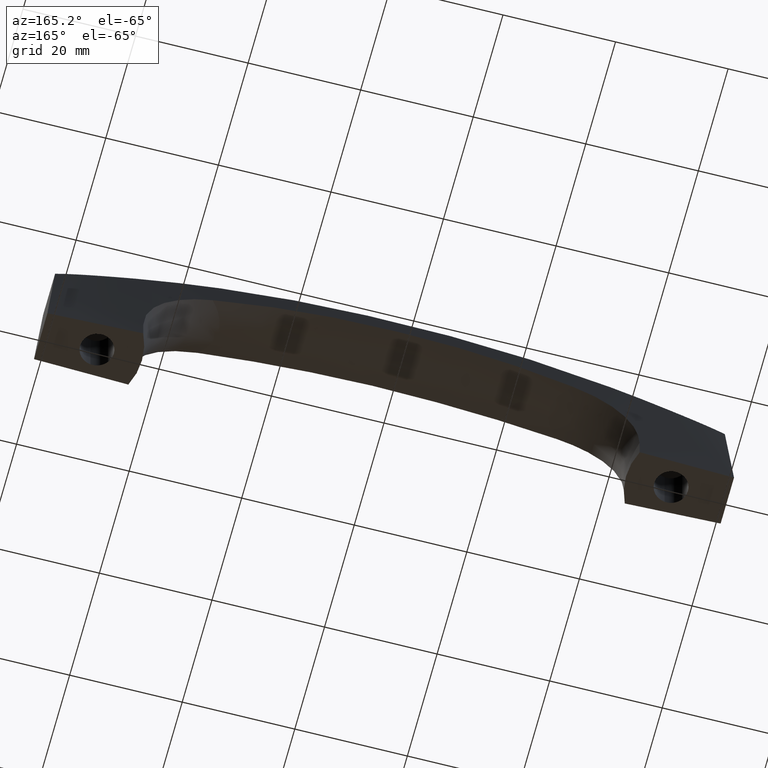
[diagram: clean part render]
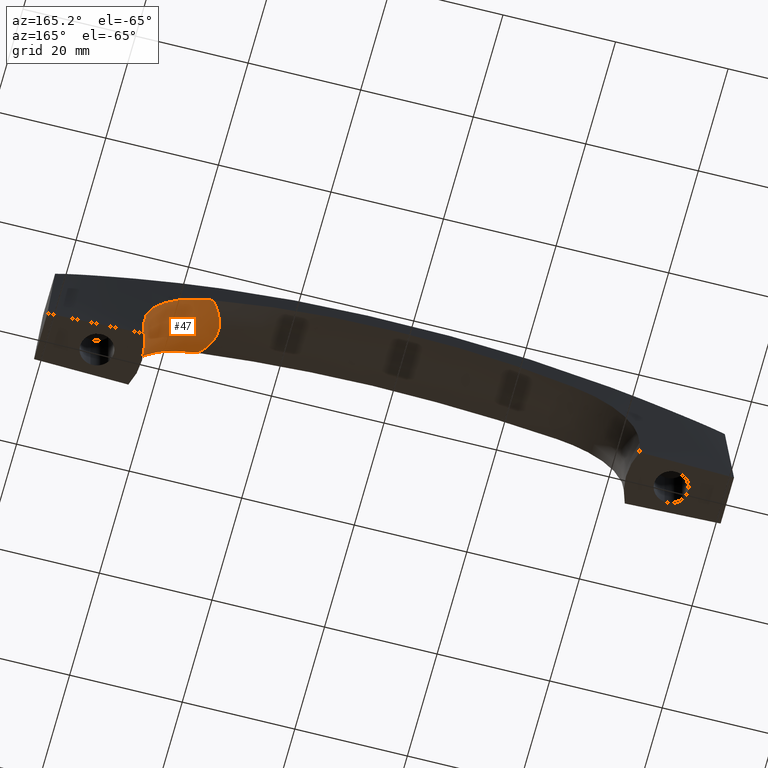
[diagram: same view with one face highlighted and labeled with its STEP entity id]
A machine part, auxiliary view. The second image highlights one B-rep face of the part: STEP entity #47.
In plain terms, the highlighted face is a freeform B-spline surface patch.
Its self-contained STEP definition (entity closure, byte-faithful):
#47=ADVANCED_FACE('',(#131),#130,.F.);
#130=( BOUNDED_SURFACE() B_SPLINE_SURFACE( 3,3,((#277,#278,#279,#280,#281,#282,#283,#284,#285,#286,#287,#288,#289,#290,#291,#292,#293,#294,#295,#296,#297,#298,#299,#300,#301,#302,#303,#304),(#305,#306,#307,#308,#309,#310,#311,#312,#313,#314,#315,#316,#317,#318,#319,#320,#321,#322,#323,#324,#325,#326,#327,#328,#329,#330,#331,#332),(#333,#334,#335,#336,#337,#338,#339,#340,#341,#342,#343,#344,#345,#346,#347,#348,#349,#350,#351,#352,#353,#354,#355,#356,#357,#358,#359,#360),(#361,#362,#363,#364,#365,#366,#367,#368,#369,#370,#371,#372,#373,#374,#375,#376,#377,#378,#379,#380,#381,#382,#383,#384,#385,#386,#387,#388),(#389,#390,#391,#392,#393,#394,#395,#396,#397,#398,#399,#400,#401,#402,#403,#404,#405,#406,#407,#408,#409,#410,#411,#412,#413,#414,#415,#416),(#417,#418,#419,#420,#421,#422,#423,#424,#425,#426,#427,#428,#429,#430,#431,#432,#433,#434,#435,#436,#437,#438,#439,#440,#441,#442,#443,#444),(#445,#446,#447,#448,#449,#450,#451,#452,#453,#454,#455,#456,#457,#458,#459,#460,#461,#462,#463,#464,#465,#466,#467,#468,#469,#470,#471,#472),(#473,#474,#475,#476,#477,#478,#479,#480,#481,#482,#483,#484,#485,#486,#487,#488,#489,#490,#491,#492,#493,#494,#495,#496,#497,#498,#499,#500),(#501,#502,#503,#504,#505,#506,#507,#508,#509,#510,#511,#512,#513,#514,#515,#516,#517,#518,#519,#520,#521,#522,#523,#524,#525,#526,#527,#528),(#529,#530,#531,#532,#533,#534,#535,#536,#537,#538,#539,#540,#541,#542,#543,#544,#545,#546,#547,#548,#549,#550,#551,#552,#553,#554,#555,#556),(#557,#558,#559,#560,#561,#562,#563,#564,#565,#566,#567,#568,#569,#570,#571,#572,#573,#574,#575,#576,#577,#578,#579,#580,#581,#582,#583,#584),(#585,#586,#587,#588,#589,#590,#591,#592,#593,#594,#595,#596,#597,#598,#599,#600,#601,#602,#603,#604,#605,#606,#607,#608,#609,#610,#611,#612),(#613,#614,#615,#616,#617,#618,#619,#620,#621,#622,#623,#624,#625,#626,#627,#628,#629,#630,#631,#632,#633,#634,#635,#636,#637,#638,#639,#640),(#641,#642,#643,#644,#645,#646,#647,#648,#649,#650,#651,#652,#653,#654,#655,#656,#657,#658,#659,#660,#661,#662,#663,#664,#665,#666,#667,#668),(#669,#670,#671,#672,#673,#674,#675,#676,#677,#678,#679,#680,#681,#682,#683,#684,#685,#686,#687,#688,#689,#690,#691,#692,#693,#694,#695,#696),(#697,#698,#699,#700,#701,#702,#703,#704,#705,#706,#707,#708,#709,#710,#711,#712,#713,#714,#715,#716,#717,#718,#719,#720,#721,#722,#723,#724),(#725,#726,#727,#728,#729,#730,#731,#732,#733,#734,#735,#736,#737,#738,#739,#740,#741,#742,#743,#744,#745,#746,#747,#748,#749,#750,#751,#752),(#753,#754,#755,#756,#757,#758,#759,#760,#761,#762,#763,#764,#765,#766,#767,#768,#769,#770,#771,#772,#773,#774,#775,#776,#777,#778,#779,#780),(#781,#782,#783,#784,#785,#786,#787,#788,#789,#790,#791,#792,#793,#794,#795,#796,#797,#798,#799,#800,#801,#802,#803,#804,#805,#806,#807,#808),(#809,#810,#811,#812,#813,#814,#815,#816,#817,#818,#819,#820,#821,#822,#823,#824,#825,#826,#827,#828,#829,#830,#831,#832,#833,#834,#835,#836),(#837,#838,#839,#840,#841,#842,#843,#844,#845,#846,#847,#848,#849,#850,#851,#852,#853,#854,#855,#856,#857,#858,#859,#860,#861,#862,#863,#864),(#865,#866,#867,#868,#869,#870,#871,#872,#873,#874,#875,#876,#877,#878,#879,#880,#881,#882,#883,#884,#885,#886,#887,#888,#889,#890,#891,#892)), .UNSPECIFIED.,.F.,.F.,.F.) B_SPLINE_SURFACE_WITH_KNOTS((4,3,3,3,3,3,3,4),(4,3,3,3,3,3,3,3,3,4),(1.23520231789E-01,3.32545823785E+00,6.11230798668E+00,1.09049134746E+01,1.44699194718E+01,1.71217688244E+01,2.10193477955E+01,2.48228626393E+01),(-5.60333634735E-04,1.79694562342E-01,9.76460286446E-01,3.02785890337E+00,5.07925752029E+00,9.18205475413E+00,1.12334533710E+01,1.32848519880E+01,1.73876492218E+01,1.82051841601E+01), .UNSPECIFIED. ) GEOMETRIC_REPRESENTATION_ITEM() RATIONAL_B_SPLINE_SURFACE(((1.00000000000E+00,1.00000000000E+00,1.00000000000E+00,1.00000000000E+00,1.00000000000E+00,1.00000000000E+00,1.00000000000E+00,1.00000000000E+00,1.00000000000E+00,1.00000000000E+00,1.00000000000E+00,1.00000000000E+00,1.00000000000E+00,1.00000000000E+00,1.00000000000E+00,1.00000000000E+00,1.00000000000E+00,1.00000000000E+00,1.00000000000E+00,1.00000000000E+00,1.00000000000E+00,1.00000000000E+00,1.00000000000E+00,1.00000000000E+00,1.00000000000E+00,1.00000000000E+00,1.00000000000E+00,1.00000000000E+00),(1.00000000000E+00,1.00000000000E+00,1.00000000000E+00,1.00000000000E+00,1.00000000000E+00,1.00000000000E+00,1.00000000000E+00,1.00000000000E+00,1.00000000000E+00,1.00000000000E+00,1.00000000000E+00,1.00000000000E+00,1.00000000000E+00,1.00000000000E+00,1.00000000000E+00,1.00000000000E+00,1.00000000000E+00,1.00000000000E+00,1.00000000000E+00,1.00000000000E+00,1.00000000000E+00,1.00000000000E+00,1.00000000000E+00,1.00000000000E+00,1.00000000000E+00,1.00000000000E+00,1.00000000000E+00,1.00000000000E+00),(1.00000000000E+00,1.00000000000E+00,1.00000000000E+00,1.00000000000E+00,1.00000000000E+00,1.00000000000E+00,1.00000000000E+00,1.00000000000E+00,1.00000000000E+00,1.00000000000E+00,1.00000000000E+00,1.00000000000E+00,1.00000000000E+00,1.00000000000E+00,1.00000000000E+00,1.00000000000E+00,1.00000000000E+00,1.00000000000E+00,1.00000000000E+00,1.00000000000E+00,1.00000000000E+00,1.00000000000E+00,1.00000000000E+00,1.00000000000E+00,1.00000000000E+00,1.00000000000E+00,1.00000000000E+00,1.00000000000E+00),(1.00000000000E+00,1.00000000000E+00,1.00000000000E+00,1.00000000000E+00,1.00000000000E+00,1.00000000000E+00,1.00000000000E+00,1.00000000000E+00,1.00000000000E+00,1.00000000000E+00,1.00000000000E+00,1.00000000000E+00,1.00000000000E+00,1.00000000000E+00,1.00000000000E+00,1.00000000000E+00,1.00000000000E+00,1.00000000000E+00,1.00000000000E+00,1.00000000000E+00,1.00000000000E+00,1.00000000000E+00,1.00000000000E+00,1.00000000000E+00,1.00000000000E+00,1.00000000000E+00,1.00000000000E+00,1.00000000000E+00),(1.00000000000E+00,1.00000000000E+00,1.00000000000E+00,1.00000000000E+00,1.00000000000E+00,1.00000000000E+00,1.00000000000E+00,1.00000000000E+00,1.00000000000E+00,1.00000000000E+00,1.00000000000E+00,1.00000000000E+00,1.00000000000E+00,1.00000000000E+00,1.00000000000E+00,1.00000000000E+00,1.00000000000E+00,1.00000000000E+00,1.00000000000E+00,1.00000000000E+00,1.00000000000E+00,1.00000000000E+00,1.00000000000E+00,1.00000000000E+00,1.00000000000E+00,1.00000000000E+00,1.00000000000E+00,1.00000000000E+00),(1.00000000000E+00,1.00000000000E+00,1.00000000000E+00,1.00000000000E+00,1.00000000000E+00,1.00000000000E+00,1.00000000000E+00,1.00000000000E+00,1.00000000000E+00,1.00000000000E+00,1.00000000000E+00,1.00000000000E+00,1.00000000000E+00,1.00000000000E+00,1.00000000000E+00,1.00000000000E+00,1.00000000000E+00,1.00000000000E+00,1.00000000000E+00,1.00000000000E+00,1.00000000000E+00,1.00000000000E+00,1.00000000000E+00,1.00000000000E+00,1.00000000000E+00,1.00000000000E+00,1.00000000000E+00,1.00000000000E+00),(1.00000000000E+00,1.00000000000E+00,1.00000000000E+00,1.00000000000E+00,1.00000000000E+00,1.00000000000E+00,1.00000000000E+00,1.00000000000E+00,1.00000000000E+00,1.00000000000E+00,1.00000000000E+00,1.00000000000E+00,1.00000000000E+00,1.00000000000E+00,1.00000000000E+00,1.00000000000E+00,1.00000000000E+00,1.00000000000E+00,1.00000000000E+00,1.00000000000E+00,1.00000000000E+00,1.00000000000E+00,1.00000000000E+00,1.00000000000E+00,1.00000000000E+00,1.00000000000E+00,1.00000000000E+00,1.00000000000E+00),(1.00000000000E+00,1.00000000000E+00,1.00000000000E+00,1.00000000000E+00,1.00000000000E+00,1.00000000000E+00,1.00000000000E+00,1.00000000000E+00,1.00000000000E+00,1.00000000000E+00,1.00000000000E+00,1.00000000000E+00,1.00000000000E+00,1.00000000000E+00,1.00000000000E+00,1.00000000000E+00,1.00000000000E+00,1.00000000000E+00,1.00000000000E+00,1.00000000000E+00,1.00000000000E+00,1.00000000000E+00,1.00000000000E+00,1.00000000000E+00,1.00000000000E+00,1.00000000000E+00,1.00000000000E+00,1.00000000000E+00),(1.00000000000E+00,1.00000000000E+00,1.00000000000E+00,1.00000000000E+00,1.00000000000E+00,1.00000000000E+00,1.00000000000E+00,1.00000000000E+00,1.00000000000E+00,1.00000000000E+00,1.00000000000E+00,1.00000000000E+00,1.00000000000E+00,1.00000000000E+00,1.00000000000E+00,1.00000000000E+00,1.00000000000E+00,1.00000000000E+00,1.00000000000E+00,1.00000000000E+00,1.00000000000E+00,1.00000000000E+00,1.00000000000E+00,1.00000000000E+00,1.00000000000E+00,1.00000000000E+00,1.00000000000E+00,1.00000000000E+00),(1.00000000000E+00,1.00000000000E+00,1.00000000000E+00,1.00000000000E+00,1.00000000000E+00,1.00000000000E+00,1.00000000000E+00,1.00000000000E+00,1.00000000000E+00,1.00000000000E+00,1.00000000000E+00,1.00000000000E+00,1.00000000000E+00,1.00000000000E+00,1.00000000000E+00,1.00000000000E+00,1.00000000000E+00,1.00000000000E+00,1.00000000000E+00,1.00000000000E+00,1.00000000000E+00,1.00000000000E+00,1.00000000000E+00,1.00000000000E+00,1.00000000000E+00,1.00000000000E+00,1.00000000000E+00,1.00000000000E+00),(1.00000000000E+00,1.00000000000E+00,1.00000000000E+00,1.00000000000E+00,1.00000000000E+00,1.00000000000E+00,1.00000000000E+00,1.00000000000E+00,1.00000000000E+00,1.00000000000E+00,1.00000000000E+00,1.00000000000E+00,1.00000000000E+00,1.00000000000E+00,1.00000000000E+00,1.00000000000E+00,1.00000000000E+00,1.00000000000E+00,1.00000000000E+00,1.00000000000E+00,1.00000000000E+00,1.00000000000E+00,1.00000000000E+00,1.00000000000E+00,1.00000000000E+00,1.00000000000E+00,1.00000000000E+00,1.00000000000E+00),(1.00000000000E+00,1.00000000000E+00,1.00000000000E+00,1.00000000000E+00,1.00000000000E+00,1.00000000000E+00,1.00000000000E+00,1.00000000000E+00,1.00000000000E+00,1.00000000000E+00,1.00000000000E+00,1.00000000000E+00,1.00000000000E+00,1.00000000000E+00,1.00000000000E+00,1.00000000000E+00,1.00000000000E+00,1.00000000000E+00,1.00000000000E+00,1.00000000000E+00,1.00000000000E+00,1.00000000000E+00,1.00000000000E+00,1.00000000000E+00,1.00000000000E+00,1.00000000000E+00,1.00000000000E+00,1.00000000000E+00),(1.00000000000E+00,1.00000000000E+00,1.00000000000E+00,1.00000000000E+00,1.00000000000E+00,1.00000000000E+00,1.00000000000E+00,1.00000000000E+00,1.00000000000E+00,1.00000000000E+00,1.00000000000E+00,1.00000000000E+00,1.00000000000E+00,1.00000000000E+00,1.00000000000E+00,1.00000000000E+00,1.00000000000E+00,1.00000000000E+00,1.00000000000E+00,1.00000000000E+00,1.00000000000E+00,1.00000000000E+00,1.00000000000E+00,1.00000000000E+00,1.00000000000E+00,1.00000000000E+00,1.00000000000E+00,1.00000000000E+00),(1.00000000000E+00,1.00000000000E+00,1.00000000000E+00,1.00000000000E+00,1.00000000000E+00,1.00000000000E+00,1.00000000000E+00,1.00000000000E+00,1.00000000000E+00,1.00000000000E+00,1.00000000000E+00,1.00000000000E+00,1.00000000000E+00,1.00000000000E+00,1.00000000000E+00,1.00000000000E+00,1.00000000000E+00,1.00000000000E+00,1.00000000000E+00,1.00000000000E+00,1.00000000000E+00,1.00000000000E+00,1.00000000000E+00,1.00000000000E+00,1.00000000000E+00,1.00000000000E+00,1.00000000000E+00,1.00000000000E+00),(1.00000000000E+00,1.00000000000E+00,1.00000000000E+00,1.00000000000E+00,1.00000000000E+00,1.00000000000E+00,1.00000000000E+00,1.00000000000E+00,1.00000000000E+00,1.00000000000E+00,1.00000000000E+00,1.00000000000E+00,1.00000000000E+00,1.00000000000E+00,1.00000000000E+00,1.00000000000E+00,1.00000000000E+00,1.00000000000E+00,1.00000000000E+00,1.00000000000E+00,1.00000000000E+00,1.00000000000E+00,1.00000000000E+00,1.00000000000E+00,1.00000000000E+00,1.00000000000E+00,1.00000000000E+00,1.00000000000E+00),(1.00000000000E+00,1.00000000000E+00,1.00000000000E+00,1.00000000000E+00,1.00000000000E+00,1.00000000000E+00,1.00000000000E+00,1.00000000000E+00,1.00000000000E+00,1.00000000000E+00,1.00000000000E+00,1.00000000000E+00,1.00000000000E+00,1.00000000000E+00,1.00000000000E+00,1.00000000000E+00,1.00000000000E+00,1.00000000000E+00,1.00000000000E+00,1.00000000000E+00,1.00000000000E+00,1.00000000000E+00,1.00000000000E+00,1.00000000000E+00,1.00000000000E+00,1.00000000000E+00,1.00000000000E+00,1.00000000000E+00),(1.00000000000E+00,1.00000000000E+00,1.00000000000E+00,1.00000000000E+00,1.00000000000E+00,1.00000000000E+00,1.00000000000E+00,1.00000000000E+00,1.00000000000E+00,1.00000000000E+00,1.00000000000E+00,1.00000000000E+00,1.00000000000E+00,1.00000000000E+00,1.00000000000E+00,1.00000000000E+00,1.00000000000E+00,1.00000000000E+00,1.00000000000E+00,1.00000000000E+00,1.00000000000E+00,1.00000000000E+00,1.00000000000E+00,1.00000000000E+00,1.00000000000E+00,1.00000000000E+00,1.00000000000E+00,1.00000000000E+00),(1.00000000000E+00,1.00000000000E+00,1.00000000000E+00,1.00000000000E+00,1.00000000000E+00,1.00000000000E+00,1.00000000000E+00,1.00000000000E+00,1.00000000000E+00,1.00000000000E+00,1.00000000000E+00,1.00000000000E+00,1.00000000000E+00,1.00000000000E+00,1.00000000000E+00,1.00000000000E+00,1.00000000000E+00,1.00000000000E+00,1.00000000000E+00,1.00000000000E+00,1.00000000000E+00,1.00000000000E+00,1.00000000000E+00,1.00000000000E+00,1.00000000000E+00,1.00000000000E+00,1.00000000000E+00,1.00000000000E+00),(1.00000000000E+00,1.00000000000E+00,1.00000000000E+00,1.00000000000E+00,1.00000000000E+00,1.00000000000E+00,1.00000000000E+00,1.00000000000E+00,1.00000000000E+00,1.00000000000E+00,1.00000000000E+00,1.00000000000E+00,1.00000000000E+00,1.00000000000E+00,1.00000000000E+00,1.00000000000E+00,1.00000000000E+00,1.00000000000E+00,1.00000000000E+00,1.00000000000E+00,1.00000000000E+00,1.00000000000E+00,1.00000000000E+00,1.00000000000E+00,1.00000000000E+00,1.00000000000E+00,1.00000000000E+00,1.00000000000E+00),(1.00000000000E+00,1.00000000000E+00,1.00000000000E+00,1.00000000000E+00,1.00000000000E+00,1.00000000000E+00,1.00000000000E+00,1.00000000000E+00,1.00000000000E+00,1.00000000000E+00,1.00000000000E+00,1.00000000000E+00,1.00000000000E+00,1.00000000000E+00,1.00000000000E+00,1.00000000000E+00,1.00000000000E+00,1.00000000000E+00,1.00000000000E+00,1.00000000000E+00,1.00000000000E+00,1.00000000000E+00,1.00000000000E+00,1.00000000000E+00,1.00000000000E+00,1.00000000000E+00,1.00000000000E+00,1.00000000000E+00),(1.00000000000E+00,1.00000000000E+00,1.00000000000E+00,1.00000000000E+00,1.00000000000E+00,1.00000000000E+00,1.00000000000E+00,1.00000000000E+00,1.00000000000E+00,1.00000000000E+00,1.00000000000E+00,1.00000000000E+00,1.00000000000E+00,1.00000000000E+00,1.00000000000E+00,1.00000000000E+00,1.00000000000E+00,1.00000000000E+00,1.00000000000E+00,1.00000000000E+00,1.00000000000E+00,1.00000000000E+00,1.00000000000E+00,1.00000000000E+00,1.00000000000E+00,1.00000000000E+00,1.00000000000E+00,1.00000000000E+00),(1.00000000000E+00,1.00000000000E+00,1.00000000000E+00,1.00000000000E+00,1.00000000000E+00,1.00000000000E+00,1.00000000000E+00,1.00000000000E+00,1.00000000000E+00,1.00000000000E+00,1.00000000000E+00,1.00000000000E+00,1.00000000000E+00,1.00000000000E+00,1.00000000000E+00,1.00000000000E+00,1.00000000000E+00,1.00000000000E+00,1.00000000000E+00,1.00000000000E+00,1.00000000000E+00,1.00000000000E+00,1.00000000000E+00,1.00000000000E+00,1.00000000000E+00,1.00000000000E+00,1.00000000000E+00,1.00000000000E+00))) REPRESENTATION_ITEM('') SURFACE() );
#131=FACE_OUTER_BOUND('',#893,.T.);
#277=CARTESIAN_POINT('',(4.50596567039E+01,6.72309583628E+00,5.22125410250E+00));
#278=CARTESIAN_POINT('',(4.50372018248E+01,6.68914607805E+00,5.18357260397E+00));
#279=CARTESIAN_POINT('',(4.50147469457E+01,6.65519631981E+00,5.14589110543E+00));
#280=CARTESIAN_POINT('',(4.49922920666E+01,6.62124656158E+00,5.10820960690E+00));
#281=CARTESIAN_POINT('',(4.48930366321E+01,6.47118126901E+00,4.94164921307E+00));
#282=CARTESIAN_POINT('',(4.47958875971E+01,6.31696553083E+00,4.77945647009E+00));
#283=CARTESIAN_POINT('',(4.47011382989E+01,6.15851192217E+00,4.62217460447E+00));
#284=CARTESIAN_POINT('',(4.44571913351E+01,5.75054819604E+00,4.21722771501E+00));
#285=CARTESIAN_POINT('',(4.42285183307E+01,5.31334448361E+00,3.84262658181E+00));
#286=CARTESIAN_POINT('',(4.40215294716E+01,4.84423348671E+00,3.50669973564E+00));
#287=CARTESIAN_POINT('',(4.38145406126E+01,4.37512248982E+00,3.17077288947E+00));
#288=CARTESIAN_POINT('',(4.36281845161E+01,3.86940236148E+00,2.87144500846E+00));
#289=CARTESIAN_POINT('',(4.34761636081E+01,3.34578554641E+00,2.63043680323E+00));
#290=CARTESIAN_POINT('',(4.31721217922E+01,2.29855191626E+00,2.14842039277E+00));
#291=CARTESIAN_POINT('',(4.30032608218E+01,1.17557991966E+00,1.89477349152E+00));
#292=CARTESIAN_POINT('',(4.30003390706E+01,3.06219988709E-02,1.88940522898E+00));
#293=CARTESIAN_POINT('',(4.29988781950E+01,-5.41856961521E-01,1.88672109771E+00));
#294=CARTESIAN_POINT('',(4.30395320807E+01,-1.12289770647E+00,1.94745689116E+00));
#295=CARTESIAN_POINT('',(4.31190122734E+01,-1.68374643163E+00,2.06986140791E+00));
#296=CARTESIAN_POINT('',(4.31984924660E+01,-2.24459515680E+00,2.19226592466E+00));
#297=CARTESIAN_POINT('',(4.33161696256E+01,-2.78856712324E+00,2.37517850658E+00));
#298=CARTESIAN_POINT('',(4.34660164873E+01,-3.31063503535E+00,2.61210057108E+00));
#299=CARTESIAN_POINT('',(4.37657102106E+01,-4.35477085955E+00,3.08594470007E+00));
#300=CARTESIAN_POINT('',(4.41994588857E+01,-5.31646203998E+00,3.78728223438E+00));
#301=CARTESIAN_POINT('',(4.46911581599E+01,-6.14179096215E+00,4.60456816621E+00));
#302=CARTESIAN_POINT('',(4.47891355429E+01,-6.30624832890E+00,4.76742286404E+00));
#303=CARTESIAN_POINT('',(4.48896182656E+01,-6.46602493545E+00,4.93540096366E+00));
#304=CARTESIAN_POINT('',(4.49922695046E+01,-6.62123306887E+00,5.10787838956E+00));
#305=CARTESIAN_POINT('',(4.48819749740E+01,6.46087590495E+00,5.97386984346E+00));
#306=CARTESIAN_POINT('',(4.48607601043E+01,6.42686623206E+00,5.93821260082E+00));
#307=CARTESIAN_POINT('',(4.48395452347E+01,6.39285655916E+00,5.90255535817E+00));
#308=CARTESIAN_POINT('',(4.48183303650E+01,6.35884688627E+00,5.86689811553E+00));
#309=CARTESIAN_POINT('',(4.47245560411E+01,6.20851675791E+00,5.70928537163E+00));
#310=CARTESIAN_POINT('',(4.46331840000E+01,6.05457812558E+00,5.55595157362E+00));
#311=CARTESIAN_POINT('',(4.45444944499E+01,5.89701636534E+00,5.40742512083E+00));
#312=CARTESIAN_POINT('',(4.43161492604E+01,5.49134884317E+00,5.02502041815E+00));
#313=CARTESIAN_POINT('',(4.41047219412E+01,5.06088030555E+00,4.67218729601E+00));
#314=CARTESIAN_POINT('',(4.39153896713E+01,4.60396194997E+00,4.35661192154E+00));
#315=CARTESIAN_POINT('',(4.37260574014E+01,4.14704359438E+00,4.04103654707E+00));
#316=CARTESIAN_POINT('',(4.35578163140E+01,3.65908658113E+00,3.76074684138E+00));
#317=CARTESIAN_POINT('',(4.34216976003E+01,3.15870307775E+00,3.53550893723E+00));
#318=CARTESIAN_POINT('',(4.31494601730E+01,2.15793607098E+00,3.08503312893E+00));
#319=CARTESIAN_POINT('',(4.30028860480E+01,1.10267985917E+00,2.85011053014E+00));
#320=CARTESIAN_POINT('',(4.30003266892E+01,2.87235963772E-02,2.84512659696E+00));
#321=CARTESIAN_POINT('',(4.29990470098E+01,-5.08254535018E-01,2.84263463036E+00));
#322=CARTESIAN_POINT('',(4.30345422343E+01,-1.05329251945E+00,2.89899435070E+00));
#323=CARTESIAN_POINT('',(4.31045573212E+01,-1.58195025990E+00,3.01288131901E+00));
#324=CARTESIAN_POINT('',(4.31745724080E+01,-2.11060800035E+00,3.12676828733E+00));
#325=CARTESIAN_POINT('',(4.32785729164E+01,-2.62613683794E+00,3.29708778663E+00));
#326=CARTESIAN_POINT('',(4.34126064673E+01,-3.12506595138E+00,3.51839320997E+00));
#327=CARTESIAN_POINT('',(4.36806735692E+01,-4.12292417827E+00,3.96100405667E+00));
#328=CARTESIAN_POINT('',(4.40751641024E+01,-5.06106933392E+00,4.61908228352E+00));
#329=CARTESIAN_POINT('',(4.45352148473E+01,-5.88097768604E+00,5.39080626419E+00));
#330=CARTESIAN_POINT('',(4.46268858551E+01,-6.04435493473E+00,5.54458215925E+00));
#331=CARTESIAN_POINT('',(4.47213725719E+01,-6.20373535222E+00,5.70337891358E+00));
#332=CARTESIAN_POINT('',(4.48183504306E+01,-6.35914449026E+00,5.86658925918E+00));
#333=CARTESIAN_POINT('',(4.46572873380E+01,6.22366604471E+00,6.73959679834E+00));
#334=CARTESIAN_POINT('',(4.46370187432E+01,6.18955289156E+00,6.70607312421E+00));
#335=CARTESIAN_POINT('',(4.46167501483E+01,6.15543973841E+00,6.67254945008E+00));
#336=CARTESIAN_POINT('',(4.45964815535E+01,6.12132658527E+00,6.63902577595E+00));
#337=CARTESIAN_POINT('',(4.45068899697E+01,5.97053905175E+00,6.49084386752E+00));
#338=CARTESIAN_POINT('',(4.44199986461E+01,5.81663196540E+00,6.34686236502E+00));
#339=CARTESIAN_POINT('',(4.43360811367E+01,5.65966191985E+00,6.20759074201E+00));
#340=CARTESIAN_POINT('',(4.41200223161E+01,5.25551786018E+00,5.84901405358E+00));
#341=CARTESIAN_POINT('',(4.39225968165E+01,4.83061573358E+00,5.51930035314E+00));
#342=CARTESIAN_POINT('',(4.37479150214E+01,4.38435146299E+00,5.22541207989E+00));
#343=CARTESIAN_POINT('',(4.35732332263E+01,3.93808719241E+00,4.93152380664E+00));
#344=CARTESIAN_POINT('',(4.34203284545E+01,3.46597932391E+00,4.67160625554E+00));
#345=CARTESIAN_POINT('',(4.32978400405E+01,2.98665498731E+00,4.46329634197E+00));
#346=CARTESIAN_POINT('',(4.30528632125E+01,2.02800631412E+00,4.04667651485E+00));
#347=CARTESIAN_POINT('',(4.29260384857E+01,1.03524868965E+00,3.83200011276E+00));
#348=CARTESIAN_POINT('',(4.29237921114E+01,2.69676084527E-02,3.82742817185E+00));
#349=CARTESIAN_POINT('',(4.29226689242E+01,-4.77172932144E-01,3.82514220139E+00));
#350=CARTESIAN_POINT('',(4.29536058166E+01,-9.88911774767E-01,3.87676992986E+00));
#351=CARTESIAN_POINT('',(4.30153439974E+01,-1.48793020544E+00,3.98147087461E+00));
#352=CARTESIAN_POINT('',(4.30770821783E+01,-1.98694863611E+00,4.08617181936E+00));
#353=CARTESIAN_POINT('',(4.31691758431E+01,-2.47644108127E+00,4.24293055275E+00));
#354=CARTESIAN_POINT('',(4.32896393605E+01,-2.95438898522E+00,4.44748295750E+00));
#355=CARTESIAN_POINT('',(4.35305663954E+01,-3.91028479311E+00,4.85658776698E+00));
#356=CARTESIAN_POINT('',(4.38922480968E+01,-4.82810235833E+00,5.46845416107E+00));
#357=CARTESIAN_POINT('',(4.43273541537E+01,-5.64421949354E+00,6.19201427046E+00));
#358=CARTESIAN_POINT('',(4.44140546127E+01,-5.80684129367E+00,6.33619289681E+00));
#359=CARTESIAN_POINT('',(4.45038890756E+01,-5.96608968460E+00,6.48529676505E+00));
#360=CARTESIAN_POINT('',(4.45965381166E+01,-6.12190564122E+00,6.63873989180E+00));
#361=CARTESIAN_POINT('',(4.43843045507E+01,6.01722161071E+00,7.50880856455E+00));
#362=CARTESIAN_POINT('',(4.43646381742E+01,5.98299175460E+00,7.47745179643E+00));
#363=CARTESIAN_POINT('',(4.43449717977E+01,5.94876189849E+00,7.44609502832E+00));
#364=CARTESIAN_POINT('',(4.43253054213E+01,5.91453204237E+00,7.41473826020E+00));
#365=CARTESIAN_POINT('',(4.42383757731E+01,5.76322865644E+00,7.27613454618E+00));
#366=CARTESIAN_POINT('',(4.41544280577E+01,5.60922971710E+00,7.14165638495E+00));
#367=CARTESIAN_POINT('',(4.40737354871E+01,5.45265670798E+00,7.01179146135E+00));
#368=CARTESIAN_POINT('',(4.38659797784E+01,5.04953488101E+00,6.67743379937E+00));
#369=CARTESIAN_POINT('',(4.36785226756E+01,4.62918249804E+00,6.37126383966E+00));
#370=CARTESIAN_POINT('',(4.35146234951E+01,4.19197548063E+00,6.09948851697E+00));
#371=CARTESIAN_POINT('',(4.33507243146E+01,3.75476846323E+00,5.82771319428E+00));
#372=CARTESIAN_POINT('',(4.32094371697E+01,3.29632183951E+00,5.58860385947E+00));
#373=CARTESIAN_POINT('',(4.30974489278E+01,2.83534159195E+00,5.39761019417E+00));
#374=CARTESIAN_POINT('',(4.28734724442E+01,1.91338109683E+00,5.01562286357E+00));
#375=CARTESIAN_POINT('',(4.27625400105E+01,9.75716085590E-01,4.82170727919E+00));
#376=CARTESIAN_POINT('',(4.27605351394E+01,2.54173075581E-02,4.81755678512E+00));
#377=CARTESIAN_POINT('',(4.27595327039E+01,-4.49732081458E-01,4.81548153809E+00));
#378=CARTESIAN_POINT('',(4.27868137763E+01,-9.32074097588E-01,4.86225540831E+00));
#379=CARTESIAN_POINT('',(4.28420048917E+01,-1.40500528744E+00,4.95754197680E+00));
#380=CARTESIAN_POINT('',(4.28971960071E+01,-1.87793647728E+00,5.05282854528E+00));
#381=CARTESIAN_POINT('',(4.29799245125E+01,-2.34460224579E+00,5.19570046591E+00));
#382=CARTESIAN_POINT('',(4.30899139725E+01,-2.80426956228E+00,5.38312603595E+00));
#383=CARTESIAN_POINT('',(4.33098928927E+01,-3.72360419528E+00,5.75797717602E+00));
#384=CARTESIAN_POINT('',(4.36471611637E+01,-4.62429379625E+00,6.32267029646E+00));
#385=CARTESIAN_POINT('',(4.40653837289E+01,-5.43772170139E+00,6.99727453355E+00));
#386=CARTESIAN_POINT('',(4.41487199357E+01,-5.59980763795E+00,7.13169807482E+00));
#387=CARTESIAN_POINT('',(4.42354961260E+01,-5.75906440844E+00,7.27095225346E+00));
#388=CARTESIAN_POINT('',(4.43253912048E+01,-5.91535606146E+00,7.41447551883E+00));
#389=CARTESIAN_POINT('',(4.41467103153E+01,5.83753992483E+00,8.17830235656E+00));
#390=CARTESIAN_POINT('',(4.41275680877E+01,5.80320849472E+00,8.14883158419E+00));
#391=CARTESIAN_POINT('',(4.41084258600E+01,5.76887706461E+00,8.11936081183E+00));
#392=CARTESIAN_POINT('',(4.40892836324E+01,5.73454563451E+00,8.08989003946E+00));
#393=CARTESIAN_POINT('',(4.40046708357E+01,5.58279326950E+00,7.95962283559E+00));
#394=CARTESIAN_POINT('',(4.39232851293E+01,5.42871438467E+00,7.83341603508E+00));
#395=CARTESIAN_POINT('',(4.38453994274E+01,5.27248694154E+00,7.71173835865E+00));
#396=CARTESIAN_POINT('',(4.36448704437E+01,4.87025482852E+00,7.39846005163E+00));
#397=CARTESIAN_POINT('',(4.34660894689E+01,4.45386237603E+00,7.11278170289E+00));
#398=CARTESIAN_POINT('',(4.33115750819E+01,4.02453846059E+00,6.86025268371E+00));
#399=CARTESIAN_POINT('',(4.31570606949E+01,3.59521454514E+00,6.60772366453E+00));
#400=CARTESIAN_POINT('',(4.30258851074E+01,3.14865816929E+00,6.38672504025E+00));
#401=CARTESIAN_POINT('',(4.29230358315E+01,2.70364394600E+00,6.21080280421E+00));
#402=CARTESIAN_POINT('',(4.27173372797E+01,1.81361549942E+00,5.85895833211E+00));
#403=CARTESIAN_POINT('',(4.26202369166E+01,9.23901084067E-01,5.68311220426E+00));
#404=CARTESIAN_POINT('',(4.26184422412E+01,2.40679823525E-02,5.67932852211E+00));
#405=CARTESIAN_POINT('',(4.26175449035E+01,-4.25848568505E-01,5.67743668104E+00));
#406=CARTESIAN_POINT('',(4.26416440839E+01,-8.82604661868E-01,5.71998593055E+00));
#407=CARTESIAN_POINT('',(4.26911368729E+01,-1.33283047129E+00,5.80707857021E+00));
#408=CARTESIAN_POINT('',(4.27406296619E+01,-1.78305628070E+00,5.89417120987E+00));
#409=CARTESIAN_POINT('',(4.28152070751E+01,-2.22985454460E+00,6.02495655648E+00));
#410=CARTESIAN_POINT('',(4.29160802986E+01,-2.67361110628E+00,6.19747555590E+00));
#411=CARTESIAN_POINT('',(4.31178267457E+01,-3.56112422964E+00,6.54251355475E+00));
#412=CARTESIAN_POINT('',(4.34338464596E+01,-4.44690627688E+00,7.06614878288E+00));
#413=CARTESIAN_POINT('',(4.38373742511E+01,-5.25799357451E+00,7.69814361898E+00));
#414=CARTESIAN_POINT('',(4.39177823359E+01,-5.41961311503E+00,7.82407669094E+00));
#415=CARTESIAN_POINT('',(4.40018967174E+01,-5.57887717877E+00,7.95475805994E+00));
#416=CARTESIAN_POINT('',(4.40893948483E+01,-5.73558286054E+00,8.08964744073E+00));
#417=CARTESIAN_POINT('',(4.38725562602E+01,5.68117318814E+00,8.85038440409E+00));
#418=CARTESIAN_POINT('',(4.38536776047E+01,5.64673041001E+00,8.82282419338E+00));
#419=CARTESIAN_POINT('',(4.38347989492E+01,5.61228763188E+00,8.79526398268E+00));
#420=CARTESIAN_POINT('',(4.38159202937E+01,5.57784485374E+00,8.76770377198E+00));
#421=CARTESIAN_POINT('',(4.37324725431E+01,5.42560030632E+00,8.64588166491E+00));
#422=CARTESIAN_POINT('',(4.36524845626E+01,5.27134910979E+00,8.52805744651E+00));
#423=CARTESIAN_POINT('',(4.35762337214E+01,5.11532087871E+00,8.41467871361E+00));
#424=CARTESIAN_POINT('',(4.33799139432E+01,4.71360166846E+00,8.12276734137E+00));
#425=CARTESIAN_POINT('',(4.32067525176E+01,4.30040194033E+00,7.85789239359E+00));
#426=CARTESIAN_POINT('',(4.30586905330E+01,3.87775358290E+00,7.62492218217E+00));
#427=CARTESIAN_POINT('',(4.29106285483E+01,3.45510522547E+00,7.39195197074E+00));
#428=CARTESIAN_POINT('',(4.27867438314E+01,3.01878290969E+00,7.18938376753E+00));
#429=CARTESIAN_POINT('',(4.26906582815E+01,2.58767727522E+00,7.02881758494E+00));
#430=CARTESIAN_POINT('',(4.24984871816E+01,1.72546600628E+00,6.70768521976E+00));
#431=CARTESIAN_POINT('',(4.24122880275E+01,8.78081810842E-01,6.55028456357E+00));
#432=CARTESIAN_POINT('',(4.24106492595E+01,2.28747922921E-02,6.54687461662E+00));
#433=CARTESIAN_POINT('',(4.24098298755E+01,-4.04728716983E-01,6.54516964315E+00));
#434=CARTESIAN_POINT('',(4.24314328627E+01,-8.38861065513E-01,6.58340513712E+00));
#435=CARTESIAN_POINT('',(4.24765410091E+01,-1.26907663675E+00,6.66213666230E+00));
#436=CARTESIAN_POINT('',(4.25216491555E+01,-1.69929220799E+00,6.74086818749E+00));
#437=CARTESIAN_POINT('',(4.25900052961E+01,-2.12865704723E+00,6.85932828852E+00));
#438=CARTESIAN_POINT('',(4.26841116585E+01,-2.55854938806E+00,7.01666694684E+00));
#439=CARTESIAN_POINT('',(4.28723243833E+01,-3.41833406973E+00,7.33134426349E+00));
#440=CARTESIAN_POINT('',(4.31734608984E+01,-4.29162625534E+00,7.81321585214E+00));
#441=CARTESIAN_POINT('',(4.35684007396E+01,-5.10120194634E+00,8.40201879947E+00));
#442=CARTESIAN_POINT('',(4.36470975653E+01,-5.26252027986E+00,8.51934533397E+00));
#443=CARTESIAN_POINT('',(4.37297575036E+01,-5.42189685166E+00,8.64133842948E+00));
#444=CARTESIAN_POINT('',(4.38160514286E+01,-5.57906763428E+00,8.76748144190E+00));
#445=CARTESIAN_POINT('',(4.35626113348E+01,5.55122921781E+00,9.51791180239E+00));
#446=CARTESIAN_POINT('',(4.35437208739E+01,5.51668401668E+00,9.49222526811E+00));
#447=CARTESIAN_POINT('',(4.35248304130E+01,5.48213881556E+00,9.46653873383E+00));
#448=CARTESIAN_POINT('',(4.35059399522E+01,5.44759361443E+00,9.44085219956E+00));
#449=CARTESIAN_POINT('',(4.34224400191E+01,5.29489633515E+00,9.32731214854E+00));
#450=CARTESIAN_POINT('',(4.33426105196E+01,5.14045746034E+00,9.21770283682E+00));
#451=CARTESIAN_POINT('',(4.32667373600E+01,4.98455060609E+00,9.11244952083E+00));
#452=CARTESIAN_POINT('',(4.30713899824E+01,4.58314389958E+00,8.84145831184E+00));
#453=CARTESIAN_POINT('',(4.29005054973E+01,4.17248554888E+00,8.59692244611E+00));
#454=CARTESIAN_POINT('',(4.27556259431E+01,3.75530194468E+00,8.38304730528E+00));
#455=CARTESIAN_POINT('',(4.26107463890E+01,3.33811834048E+00,8.16917216445E+00));
#456=CARTESIAN_POINT('',(4.24909397749E+01,2.91024820718E+00,7.98457223572E+00));
#457=CARTESIAN_POINT('',(4.23988698843E+01,2.49070524692E+00,7.83896638564E+00));
#458=CARTESIAN_POINT('',(4.22147301030E+01,1.65161932638E+00,7.54775468548E+00));
#459=CARTESIAN_POINT('',(4.21358712017E+01,8.39679314771E-01,7.40824836804E+00));
#460=CARTESIAN_POINT('',(4.21343238502E+01,2.18747438097E-02,7.40520256706E+00));
#461=CARTESIAN_POINT('',(4.21335501744E+01,-3.87027541671E-01,7.40367966657E+00));
#462=CARTESIAN_POINT('',(4.21534860486E+01,-8.02199011352E-01,7.43772709705E+00));
#463=CARTESIAN_POINT('',(4.21957730940E+01,-1.21567435853E+00,7.50832925555E+00));
#464=CARTESIAN_POINT('',(4.22380601394E+01,-1.62914970570E+00,7.57893141406E+00));
#465=CARTESIAN_POINT('',(4.23024759253E+01,-2.04396467022E+00,7.68540527432E+00));
#466=CARTESIAN_POINT('',(4.23925362799E+01,-2.46232952845E+00,7.82796375953E+00));
#467=CARTESIAN_POINT('',(4.25726569891E+01,-3.29905924491E+00,8.11308072994E+00));
#468=CARTESIAN_POINT('',(4.28660461312E+01,-4.16219035601E+00,8.55419152033E+00));
#469=CARTESIAN_POINT('',(4.32589522333E+01,-4.97073852621E+00,9.10070619180E+00));
#470=CARTESIAN_POINT('',(4.33372438104E+01,-5.13185211305E+00,9.20960624528E+00));
#471=CARTESIAN_POINT('',(4.34197347216E+01,-5.29136815434E+00,9.32308469821E+00));
#472=CARTESIAN_POINT('',(4.35060849459E+01,-5.44897060001E+00,9.44064992184E+00));
#473=CARTESIAN_POINT('',(4.30295923764E+01,5.32776177555E+00,1.06658730349E+01));
#474=CARTESIAN_POINT('',(4.30106816135E+01,5.29304043539E+00,1.06434087023E+01));
#475=CARTESIAN_POINT('',(4.29917708506E+01,5.25831909523E+00,1.06209443697E+01));
#476=CARTESIAN_POINT('',(4.29728600878E+01,5.22359775507E+00,1.05984800371E+01));
#477=CARTESIAN_POINT('',(4.28892704156E+01,5.07012190309E+00,1.04991828161E+01));
#478=CARTESIAN_POINT('',(4.28097134592E+01,4.91536027392E+00,1.04037008562E+01));
#479=CARTESIAN_POINT('',(4.27344898067E+01,4.75966215401E+00,1.03124209945E+01));
#480=CARTESIAN_POINT('',(4.25408146873E+01,4.35879286689E+00,1.00774066405E+01));
#481=CARTESIAN_POINT('',(4.23738459058E+01,3.95250497767E+00,9.86784833186E+00));
#482=CARTESIAN_POINT('',(4.22344392458E+01,3.54471922720E+00,9.68681139487E+00));
#483=CARTESIAN_POINT('',(4.20950325858E+01,3.13693347673E+00,9.50577445788E+00));
#484=CARTESIAN_POINT('',(4.19822391731E+01,2.72359874355E+00,9.35207495746E+00));
#485=CARTESIAN_POINT('',(4.18970750981E+01,2.32394036295E+00,9.23219671315E+00));
#486=CARTESIAN_POINT('',(4.17267469482E+01,1.52462360174E+00,8.99244022454E+00));
#487=CARTESIAN_POINT('',(4.16605112378E+01,7.73637715831E-01,8.88370718657E+00));
#488=CARTESIAN_POINT('',(4.16591210971E+01,2.01549389127E-02,8.88128761523E+00));
#489=CARTESIAN_POINT('',(4.16584260268E+01,-3.56586449546E-01,8.88007782956E+00));
#490=CARTESIAN_POINT('',(4.16754949306E+01,-7.39150487820E-01,8.90692295713E+00));
#491=CARTESIAN_POINT('',(4.17129304679E+01,-1.12383731141E+00,8.96354486880E+00));
#492=CARTESIAN_POINT('',(4.17503660052E+01,-1.50852413500E+00,9.02016678048E+00));
#493=CARTESIAN_POINT('',(4.18080054783E+01,-1.89831736685E+00,9.10602764454E+00));
#494=CARTESIAN_POINT('',(4.18911078263E+01,-2.29685816517E+00,9.22316834796E+00));
#495=CARTESIAN_POINT('',(4.20573125224E+01,-3.09393976179E+00,9.45744975479E+00));
#496=CARTESIAN_POINT('',(4.23373783403E+01,-3.93959665439E+00,9.82846332323E+00));
#497=CARTESIAN_POINT('',(4.27267869773E+01,-4.74637777497E+00,1.03022539366E+01));
#498=CARTESIAN_POINT('',(4.28043816397E+01,-4.90713925451E+00,1.03966627893E+01));
#499=CARTESIAN_POINT('',(4.28865818717E+01,-5.06689514449E+00,1.04954984282E+01));
#500=CARTESIAN_POINT('',(4.29730289150E+01,-5.22523993039E+00,1.05983122438E+01));
#501=CARTESIAN_POINT('',(4.23899615169E+01,5.18304046345E+00,1.18001899194E+01));
#502=CARTESIAN_POINT('',(4.23702051693E+01,5.14817336060E+00,1.17808362123E+01));
#503=CARTESIAN_POINT('',(4.23504488217E+01,5.11330625776E+00,1.17614825052E+01));
#504=CARTESIAN_POINT('',(4.23306924740E+01,5.07843915491E+00,1.17421287982E+01));
#505=CARTESIAN_POINT('',(4.22433651339E+01,4.92431900025E+00,1.16565812165E+01));
#506=CARTESIAN_POINT('',(4.21603647453E+01,4.76920579793E+00,1.15747190180E+01));
#507=CARTESIAN_POINT('',(4.20820186449E+01,4.61350128728E+00,1.14968869761E+01));
#508=CARTESIAN_POINT('',(4.18803042925E+01,4.21261554618E+00,1.12964961480E+01));
#509=CARTESIAN_POINT('',(4.17072070847E+01,3.80879947429E+00,1.11205056533E+01));
#510=CARTESIAN_POINT('',(4.15634324328E+01,3.40683443344E+00,1.09708960706E+01));
#511=CARTESIAN_POINT('',(4.14196577810E+01,3.00486939259E+00,1.08212864879E+01));
#512=CARTESIAN_POINT('',(4.13041928024E+01,2.60077935227E+00,1.06970781600E+01));
#513=CARTESIAN_POINT('',(4.12176403894E+01,2.21401230195E+00,1.06017185643E+01));
#514=CARTESIAN_POINT('',(4.10445355635E+01,1.44047820132E+00,1.04109993728E+01));
#515=CARTESIAN_POINT('',(4.09801362393E+01,7.29823116943E-01,1.03313495074E+01));
#516=CARTESIAN_POINT('',(4.09787082328E+01,1.90139513256E-02,1.03295267900E+01));
#517=CARTESIAN_POINT('',(4.09779942295E+01,-3.36390631483E-01,1.03286154314E+01));
#518=CARTESIAN_POINT('',(4.09947067692E+01,-6.97324027959E-01,1.03486437211E+01));
#519=CARTESIAN_POINT('',(4.10320200308E+01,-1.06300999127E+00,1.03919952621E+01));
#520=CARTESIAN_POINT('',(4.10693332925E+01,-1.42869595457E+00,1.04353468031E+01));
#521=CARTESIAN_POINT('',(4.11270917627E+01,-1.80208495175E+00,1.05016321771E+01));
#522=CARTESIAN_POINT('',(4.12114484705E+01,-2.18776822696E+00,1.05945771696E+01));
#523=CARTESIAN_POINT('',(4.13801618863E+01,-2.95913477740E+00,1.07804671546E+01));
#524=CARTESIAN_POINT('',(4.16683886302E+01,-3.79417525684E+00,1.10844370401E+01));
#525=CARTESIAN_POINT('',(4.20739652376E+01,-4.60054484146E+00,1.14882409195E+01));
#526=CARTESIAN_POINT('',(4.21547815753E+01,-4.76122431719E+00,1.15687040184E+01));
#527=CARTESIAN_POINT('',(4.22405455941E+01,-4.92128286213E+00,1.16534224813E+01));
#528=CARTESIAN_POINT('',(4.23308670592E+01,-5.08025308905E+00,1.17419948383E+01));
#529=CARTESIAN_POINT('',(4.16587241881E+01,5.12597233766E+00,1.28833963237E+01));
#530=CARTESIAN_POINT('',(4.16373674772E+01,5.09104862197E+00,1.28667115798E+01));
#531=CARTESIAN_POINT('',(4.16160107663E+01,5.05612490627E+00,1.28500268359E+01));
#532=CARTESIAN_POINT('',(4.15946540554E+01,5.02120119057E+00,1.28333420920E+01));
#533=CARTESIAN_POINT('',(4.15002527626E+01,4.86683079483E+00,1.27595919063E+01));
#534=CARTESIAN_POINT('',(4.14103889123E+01,4.71158280362E+00,1.26893407590E+01));
#535=CARTESIAN_POINT('',(4.13254236259E+01,4.55587954464E+00,1.26228931104E+01));
#536=CARTESIAN_POINT('',(4.11066671386E+01,4.15499702613E+00,1.24518131927E+01));
#537=CARTESIAN_POINT('',(4.09179757230E+01,3.75216486672E+00,1.23037713337E+01));
#538=CARTESIAN_POINT('',(4.07603957194E+01,3.35250163456E+00,1.21799445905E+01));
#539=CARTESIAN_POINT('',(4.06028157158E+01,2.95283840240E+00,1.20561178473E+01));
#540=CARTESIAN_POINT('',(4.04752236810E+01,2.55239758621E+00,1.19557010909E+01));
#541=CARTESIAN_POINT('',(4.03790751239E+01,2.17071318832E+00,1.18798988061E+01));
#542=CARTESIAN_POINT('',(4.01867780096E+01,1.40734439255E+00,1.17282942364E+01));
#543=CARTESIAN_POINT('',(4.01130901427E+01,7.12571372964E-01,1.16708680672E+01));
#544=CARTESIAN_POINT('',(4.01114268838E+01,1.85646941129E-02,1.16695210374E+01));
#545=CARTESIAN_POINT('',(4.01105952543E+01,-3.28438645313E-01,1.16688475226E+01));
#546=CARTESIAN_POINT('',(4.01295311010E+01,-6.80855064026E-01,1.16836420143E+01));
#547=CARTESIAN_POINT('',(4.01715166053E+01,-1.03905743032E+00,1.17166494285E+01));
#548=CARTESIAN_POINT('',(4.02135021096E+01,-1.39725979661E+00,1.17496568427E+01));
#549=CARTESIAN_POINT('',(4.02783291348E+01,-1.76418548530E+00,1.18006059842E+01));
#550=CARTESIAN_POINT('',(4.03720773246E+01,-2.14479957005E+00,1.18742912671E+01));
#551=CARTESIAN_POINT('',(4.05595737041E+01,-2.90602773956E+00,1.20216618328E+01));
#552=CARTESIAN_POINT('',(4.08766276286E+01,-3.73686498314E+00,1.22709780573E+01));
#553=CARTESIAN_POINT('',(4.13166146915E+01,-4.54305278050E+00,1.26155461857E+01));
#554=CARTESIAN_POINT('',(4.14042877535E+01,-4.70369603279E+00,1.26842058020E+01));
#555=CARTESIAN_POINT('',(4.14971642449E+01,-4.86386994957E+00,1.27568888843E+01));
#556=CARTESIAN_POINT('',(4.15948154115E+01,-5.02308285409E+00,1.28332394965E+01));
#557=CARTESIAN_POINT('',(4.11147892723E+01,5.08352189788E+00,1.36891453755E+01));
#558=CARTESIAN_POINT('',(4.10922421223E+01,5.04855607040E+00,1.36744459545E+01));
#559=CARTESIAN_POINT('',(4.10696949724E+01,5.01359024292E+00,1.36597465336E+01));
#560=CARTESIAN_POINT('',(4.10471478225E+01,4.97862441544E+00,1.36450471127E+01));
#561=CARTESIAN_POINT('',(4.09474845310E+01,4.82406787649E+00,1.35800724849E+01));
#562=CARTESIAN_POINT('',(4.08525152569E+01,4.66871962183E+00,1.35184582820E+01));
#563=CARTESIAN_POINT('',(4.07626262526E+01,4.51301729390E+00,1.34604789771E+01));
#564=CARTESIAN_POINT('',(4.05311928793E+01,4.11213717254E+00,1.33112021417E+01));
#565=CARTESIAN_POINT('',(4.03309016263E+01,3.71003690184E+00,1.31839500293E+01));
#566=CARTESIAN_POINT('',(4.01630524357E+01,3.31208588276E+00,1.30793019933E+01));
#567=CARTESIAN_POINT('',(3.99952032451E+01,2.91413486368E+00,1.29746539573E+01));
#568=CARTESIAN_POINT('',(3.98585904328E+01,2.51640854297E+00,1.28919346924E+01));
#569=CARTESIAN_POINT('',(3.97553037310E+01,2.13850490409E+00,1.28306802211E+01));
#570=CARTESIAN_POINT('',(3.95487303274E+01,1.38269762635E+00,1.27081712784E+01));
#571=CARTESIAN_POINT('',(3.94681331267E+01,6.99738568157E-01,1.26672763280E+01));
#572=CARTESIAN_POINT('',(3.94662948740E+01,1.82305116601E-02,1.26662831411E+01));
#573=CARTESIAN_POINT('',(3.94653757477E+01,-3.22523516588E-01,1.26657865476E+01));
#574=CARTESIAN_POINT('',(3.94859654136E+01,-6.68604534469E-01,1.26766878500E+01));
#575=CARTESIAN_POINT('',(3.95314263913E+01,-1.02124018589E+00,1.27020007284E+01));
#576=CARTESIAN_POINT('',(3.95768873689E+01,-1.37387583731E+00,1.27273136069E+01));
#577=CARTESIAN_POINT('',(3.96469723777E+01,-1.73599375837E+00,1.27668548074E+01));
#578=CARTESIAN_POINT('',(3.97477064731E+01,-2.11283709787E+00,1.28262136491E+01));
#579=CARTESIAN_POINT('',(3.99491746638E+01,-2.86652377687E+00,1.29449313325E+01));
#580=CARTESIAN_POINT('',(4.02876718453E+01,-3.69423442029E+00,1.31535931302E+01));
#581=CARTESIAN_POINT('',(4.07532553152E+01,-4.50028699421E+00,1.34540984190E+01));
#582=CARTESIAN_POINT('',(4.08460287894E+01,-4.66090330149E+00,1.35139779496E+01));
#583=CARTESIAN_POINT('',(4.09441959327E+01,-4.82116303825E+00,1.35777084477E+01));
#584=CARTESIAN_POINT('',(4.10472993381E+01,-4.98055645983E+00,1.36449678478E+01));
#585=CARTESIAN_POINT('',(4.05205134779E+01,5.08938473114E+00,1.44665219137E+01));
#586=CARTESIAN_POINT('',(4.04963629645E+01,5.05442509726E+00,1.44535620561E+01));
#587=CARTESIAN_POINT('',(4.04722124510E+01,5.01946546338E+00,1.44406021985E+01));
#588=CARTESIAN_POINT('',(4.04480619376E+01,4.98450582951E+00,1.44276423409E+01));
#589=CARTESIAN_POINT('',(4.03413114319E+01,4.82997666762E+00,1.43703569604E+01));
#590=CARTESIAN_POINT('',(4.02393663189E+01,4.67464396334E+00,1.43162617502E+01));
#591=CARTESIAN_POINT('',(4.01426418351E+01,4.51894320303E+00,1.42656021824E+01));
#592=CARTESIAN_POINT('',(3.98936094454E+01,4.11806711776E+00,1.41351711608E+01));
#593=CARTESIAN_POINT('',(3.96765475205E+01,3.71587009775E+00,1.40255790944E+01));
#594=CARTESIAN_POINT('',(3.94932776010E+01,3.31768584157E+00,1.39369642733E+01));
#595=CARTESIAN_POINT('',(3.93100076815E+01,2.91950158540E+00,1.38483494523E+01));
#596=CARTESIAN_POINT('',(3.91592166506E+01,2.52140246134E+00,1.37801496528E+01));
#597=CARTESIAN_POINT('',(3.90443171687E+01,2.14297654100E+00,1.37306753156E+01));
#598=CARTESIAN_POINT('',(3.88145182048E+01,1.38612470031E+00,1.36317266414E+01));
#599=CARTESIAN_POINT('',(3.87209546408E+01,7.01523641983E-01,1.36035323849E+01));
#600=CARTESIAN_POINT('',(3.87188338753E+01,1.82769972534E-02,1.36028253986E+01));
#601=CARTESIAN_POINT('',(3.87177734925E+01,-3.23346325111E-01,1.36024719055E+01));
#602=CARTESIAN_POINT('',(3.87414216774E+01,-6.70308581641E-01,1.36103640106E+01));
#603=CARTESIAN_POINT('',(3.87929698545E+01,-1.02371737679E+00,1.36296158808E+01));
#604=CARTESIAN_POINT('',(3.88445180315E+01,-1.37712617194E+00,1.36488677509E+01));
#605=CARTESIAN_POINT('',(3.89236474009E+01,-1.73991047991E+00,1.36793669942E+01));
#606=CARTESIAN_POINT('',(3.90358035260E+01,-2.11727478371E+00,1.37271527637E+01));
#607=CARTESIAN_POINT('',(3.92601157763E+01,-2.87200339130E+00,1.38227243026E+01));
#608=CARTESIAN_POINT('',(3.96313339404E+01,-3.70013727879E+00,1.39976374055E+01));
#609=CARTESIAN_POINT('',(4.01324873724E+01,-4.50619974621E+00,1.42600644812E+01));
#610=CARTESIAN_POINT('',(4.02323486174E+01,-4.66681802491E+00,1.43123564398E+01));
#611=CARTESIAN_POINT('',(4.03377471870E+01,-4.82706414888E+00,1.43682929909E+01));
#612=CARTESIAN_POINT('',(4.04481931611E+01,-4.98643091558E+00,1.44275850343E+01));
#613=CARTESIAN_POINT('',(3.98865009003E+01,5.14335470151E+00,1.52018542699E+01));
#614=CARTESIAN_POINT('',(3.98604255486E+01,5.10844815704E+00,1.51902780116E+01));
#615=CARTESIAN_POINT('',(3.98343501969E+01,5.07354161256E+00,1.51787017533E+01));
#616=CARTESIAN_POINT('',(3.98082748452E+01,5.03863506809E+00,1.51671254950E+01));
#617=CARTESIAN_POINT('',(3.96930161369E+01,4.88434057287E+00,1.51159559234E+01));
#618=CARTESIAN_POINT('',(3.95826391584E+01,4.72913331008E+00,1.50677647292E+01));
#619=CARTESIAN_POINT('',(3.94775899929E+01,4.57342934425E+00,1.50227719384E+01));
#620=CARTESIAN_POINT('',(3.92071244013E+01,4.17254500585E+00,1.49069309252E+01));
#621=CARTESIAN_POINT('',(3.89692668959E+01,3.76941232514E+00,1.48105175493E+01));
#622=CARTESIAN_POINT('',(3.87665640606E+01,3.36904736430E+00,1.47334614181E+01));
#623=CARTESIAN_POINT('',(3.85638612253E+01,2.96868240345E+00,1.46564052869E+01));
#624=CARTESIAN_POINT('',(3.83948759267E+01,2.56712966862E+00,1.45982308480E+01));
#625=CARTESIAN_POINT('',(3.82648783678E+01,2.18389717016E+00,1.45566369862E+01));
#626=CARTESIAN_POINT('',(3.80048832500E+01,1.41743217325E+00,1.44734492625E+01));
#627=CARTESIAN_POINT('',(3.78936181371E+01,7.17823631660E-01,1.44526467015E+01));
#628=CARTESIAN_POINT('',(3.78911312368E+01,1.87014695632E-02,1.44521314652E+01));
#629=CARTESIAN_POINT('',(3.78898877866E+01,-3.30859611485E-01,1.44518738470E+01));
#630=CARTESIAN_POINT('',(3.79176921614E+01,-6.85869012832E-01,1.44579851635E+01));
#631=CARTESIAN_POINT('',(3.79773650476E+01,-1.04634997554E+00,1.44734579003E+01));
#632=CARTESIAN_POINT('',(3.80370379339E+01,-1.40683093824E+00,1.44889306371E+01));
#633=CARTESIAN_POINT('',(3.81281651596E+01,-1.77572482623E+00,1.45136970987E+01));
#634=CARTESIAN_POINT('',(3.82552019380E+01,-2.15788289854E+00,1.45537809652E+01));
#635=CARTESIAN_POINT('',(3.85092754947E+01,-2.92219904316E+00,1.46339486980E+01));
#636=CARTESIAN_POINT('',(3.89219813016E+01,-3.75431819489E+00,1.47849383933E+01));
#637=CARTESIAN_POINT('',(3.94664765188E+01,-4.56056304862E+00,1.50178987645E+01));
#638=CARTESIAN_POINT('',(3.95749741702E+01,-4.72121767012E+00,1.50643191045E+01));
#639=CARTESIAN_POINT('',(3.96891153474E+01,-4.88135678370E+00,1.51141355058E+01));
#640=CARTESIAN_POINT('',(3.98083758981E+01,-5.04049610197E+00,1.51670881435E+01));
#641=CARTESIAN_POINT('',(3.94148871513E+01,5.18350056132E+00,1.57488352944E+01));
#642=CARTESIAN_POINT('',(3.93873799981E+01,5.14863350769E+00,1.57382882340E+01));
#643=CARTESIAN_POINT('',(3.93598728448E+01,5.11376645406E+00,1.57277411737E+01));
#644=CARTESIAN_POINT('',(3.93323656916E+01,5.07889940043E+00,1.57171941134E+01));
#645=CARTESIAN_POINT('',(3.92107781099E+01,4.92477946331E+00,1.56705738200E+01));
#646=CARTESIAN_POINT('',(3.90941290419E+01,4.76966551087E+00,1.56267743606E+01));
#647=CARTESIAN_POINT('',(3.89828875159E+01,4.61395916059E+00,1.55859968331E+01));
#648=CARTESIAN_POINT('',(3.86964787191E+01,4.21306868306E+00,1.54810086779E+01));
#649=CARTESIAN_POINT('',(3.84431523065E+01,3.80924000599E+00,1.53943983436E+01));
#650=CARTESIAN_POINT('',(3.82259941897E+01,3.40725291595E+00,1.53259402075E+01));
#651=CARTESIAN_POINT('',(3.80088360729E+01,3.00526582591E+00,1.52574820714E+01));
#652=CARTESIAN_POINT('',(3.78263168681E+01,2.60114410368E+00,1.52067650523E+01));
#653=CARTESIAN_POINT('',(3.76850885215E+01,2.21433620562E+00,1.51710331254E+01));
#654=CARTESIAN_POINT('',(3.74026318282E+01,1.44072040949E+00,1.50995692717E+01));
#655=CARTESIAN_POINT('',(3.72781993206E+01,7.29948468787E-01,1.50842650641E+01));
#656=CARTESIAN_POINT('',(3.72754400689E+01,1.90172156295E-02,1.50838924620E+01));
#657=CARTESIAN_POINT('',(3.72740604430E+01,-3.36448410949E-01,1.50837061610E+01));
#658=CARTESIAN_POINT('',(3.73049564225E+01,-6.97443725303E-01,1.50884928280E+01));
#659=CARTESIAN_POINT('',(3.73706729184E+01,-1.06318535881E+00,1.51011544357E+01));
#660=CARTESIAN_POINT('',(3.74363894144E+01,-1.42892699231E+00,1.51138160433E+01));
#661=CARTESIAN_POINT('',(3.75364413117E+01,-1.80236552506E+00,1.51343181437E+01));
#662=CARTESIAN_POINT('',(3.76745471460E+01,-2.18808946849E+00,1.51686729072E+01));
#663=CARTESIAN_POINT('',(3.79507588145E+01,-2.95953735535E+00,1.52373824341E+01));
#664=CARTESIAN_POINT('',(3.83943254331E+01,-3.79462096784E+00,1.53705765706E+01));
#665=CARTESIAN_POINT('',(3.89710606761E+01,-4.60100149063E+00,1.55816179714E+01));
#666=CARTESIAN_POINT('',(3.90859825658E+01,-4.76168314593E+00,1.56236706757E+01));
#667=CARTESIAN_POINT('',(3.92066269799E+01,-4.92174265923E+00,1.56689345698E+01));
#668=CARTESIAN_POINT('',(3.93324443018E+01,-5.08071278874E+00,1.57171716055E+01));
#669=CARTESIAN_POINT('',(3.89213751577E+01,5.25018925997E+00,1.62725837052E+01));
#670=CARTESIAN_POINT('',(3.88922596252E+01,5.21538709611E+00,1.62628693793E+01));
#671=CARTESIAN_POINT('',(3.88631440926E+01,5.18058493224E+00,1.62531550535E+01));
#672=CARTESIAN_POINT('',(3.88340285601E+01,5.14578276838E+00,1.62434407276E+01));
#673=CARTESIAN_POINT('',(3.87053315933E+01,4.99194965808E+00,1.62005013010E+01));
#674=CARTESIAN_POINT('',(3.85816109079E+01,4.83698749262E+00,1.61602023466E+01));
#675=CARTESIAN_POINT('',(3.84633595163E+01,4.68127396738E+00,1.61227280144E+01));
#676=CARTESIAN_POINT('',(3.81589027183E+01,4.28036501680E+00,1.60262444550E+01));
#677=CARTESIAN_POINT('',(3.78878996153E+01,3.87537189556E+00,1.59469652564E+01));
#678=CARTESIAN_POINT('',(3.76540871111E+01,3.47068393976E+00,1.58846378676E+01));
#679=CARTESIAN_POINT('',(3.74202746070E+01,3.06599598395E+00,1.58223104789E+01));
#680=CARTESIAN_POINT('',(3.72220220883E+01,2.65760263474E+00,1.57765737674E+01));
#681=CARTESIAN_POINT('',(3.70676553842E+01,2.26485556191E+00,1.57445549517E+01));
#682=CARTESIAN_POINT('',(3.67589219759E+01,1.47936141625E+00,1.56805173204E+01));
#683=CARTESIAN_POINT('',(3.66187347610E+01,7.50065185781E-01,1.56677885798E+01));
#684=CARTESIAN_POINT('',(3.66156574427E+01,1.95410803069E-02,1.56675065965E+01));
#685=CARTESIAN_POINT('',(3.66141187835E+01,-3.45720972430E-01,1.56673656048E+01));
#686=CARTESIAN_POINT('',(3.66487062166E+01,-7.16647775979E-01,1.56715039709E+01));
#687=CARTESIAN_POINT('',(3.67215803475E+01,-1.09111993160E+00,1.56826111762E+01));
#688=CARTESIAN_POINT('',(3.67944544784E+01,-1.46559208723E+00,1.56937183815E+01));
#689=CARTESIAN_POINT('',(3.69050463266E+01,-1.84657549723E+00,1.57117788691E+01));
#690=CARTESIAN_POINT('',(3.70561141807E+01,-2.23822265966E+00,1.57425376200E+01));
#691=CARTESIAN_POINT('',(3.73582498889E+01,-3.02151698451E+00,1.58040551217E+01));
#692=CARTESIAN_POINT('',(3.78374813341E+01,-3.86154166074E+00,1.59248710271E+01));
#693=CARTESIAN_POINT('',(3.84507229349E+01,-4.66816419615E+00,1.61187450639E+01));
#694=CARTESIAN_POINT('',(3.85729191844E+01,-4.82889407556E+00,1.61573769509E+01));
#695=CARTESIAN_POINT('',(3.87008966474E+01,-4.98882468490E+00,1.61990120248E+01));
#696=CARTESIAN_POINT('',(3.88340792807E+01,-5.14751701015E+00,1.62434319571E+01));
#697=CARTESIAN_POINT('',(3.84112557688E+01,5.34213547396E+00,1.67686073677E+01));
#698=CARTESIAN_POINT('',(3.83804058955E+01,5.30741499280E+00,1.67595003216E+01));
#699=CARTESIAN_POINT('',(3.83495560223E+01,5.27269451165E+00,1.67503932755E+01));
#700=CARTESIAN_POINT('',(3.83187061491E+01,5.23797403049E+00,1.67412862294E+01));
#701=CARTESIAN_POINT('',(3.81823430204E+01,5.08450197550E+00,1.67010311109E+01));
#702=CARTESIAN_POINT('',(3.80509825780E+01,4.92971403010E+00,1.66632137302E+01));
#703=CARTESIAN_POINT('',(3.79251421142E+01,4.77395575300E+00,1.66280043760E+01));
#704=CARTESIAN_POINT('',(3.76011460568E+01,4.37293158171E+00,1.65373523583E+01));
#705=CARTESIAN_POINT('',(3.73109191922E+01,3.96624437050E+00,1.64626161335E+01));
#706=CARTESIAN_POINT('',(3.70589252761E+01,3.55776673399E+00,1.64036638043E+01));
#707=CARTESIAN_POINT('',(3.68069313600E+01,3.14928909749E+00,1.63447114751E+01));
#708=CARTESIAN_POINT('',(3.65914347466E+01,2.73496406394E+00,1.63012157901E+01));
#709=CARTESIAN_POINT('',(3.64226290218E+01,2.33403140176E+00,1.62705506309E+01));
#710=CARTESIAN_POINT('',(3.60850175723E+01,1.53216607740E+00,1.62092203125E+01));
#711=CARTESIAN_POINT('',(3.59273405582E+01,7.77541565144E-01,1.61959302867E+01));
#712=CARTESIAN_POINT('',(3.59239145034E+01,2.02565995642E-02,1.61956825845E+01));
#713=CARTESIAN_POINT('',(3.59222014759E+01,-3.58385883226E-01,1.61955587335E+01));
#714=CARTESIAN_POINT('',(3.59608831096E+01,-7.42878197287E-01,1.61997764205E+01));
#715=CARTESIAN_POINT('',(3.60416661893E+01,-1.12929911804E+00,1.62106910650E+01));
#716=CARTESIAN_POINT('',(3.61224492690E+01,-1.51572003879E+00,1.62216057094E+01));
#717=CARTESIAN_POINT('',(3.62446739027E+01,-1.90705673887E+00,1.62392056203E+01));
#718=CARTESIAN_POINT('',(3.64099960300E+01,-2.30686615347E+00,1.62687079637E+01));
#719=CARTESIAN_POINT('',(3.67406402845E+01,-3.10648498267E+00,1.63277126504E+01));
#720=CARTESIAN_POINT('',(3.72588541170E+01,-3.95349619813E+00,1.64421908411E+01));
#721=CARTESIAN_POINT('',(3.79116256735E+01,-4.76063287173E+00,1.66243051141E+01));
#722=CARTESIAN_POINT('',(3.80416987733E+01,-4.92146519977E+00,1.66605937173E+01));
#723=CARTESIAN_POINT('',(3.81775991142E+01,-5.08125431404E+00,1.66996559451E+01));
#724=CARTESIAN_POINT('',(3.83187240325E+01,-5.23959915424E+00,1.67412899051E+01));
#725=CARTESIAN_POINT('',(3.76615032983E+01,5.47727423279E+00,1.74976425199E+01));
#726=CARTESIAN_POINT('',(3.76281043626E+01,5.44267380552E+00,1.74894280285E+01));
#727=CARTESIAN_POINT('',(3.75947054268E+01,5.40807337825E+00,1.74812135372E+01));
#728=CARTESIAN_POINT('',(3.75613064911E+01,5.37347295098E+00,1.74729990458E+01));
#729=CARTESIAN_POINT('',(3.74136759534E+01,5.22053156018E+00,1.74366892129E+01));
#730=CARTESIAN_POINT('',(3.72710869107E+01,5.06599967628E+00,1.74025191472E+01));
#731=CARTESIAN_POINT('',(3.71340923412E+01,4.91017562473E+00,1.73706387642E+01));
#732=CARTESIAN_POINT('',(3.67813782849E+01,4.50898210678E+00,1.72885577064E+01));
#733=CARTESIAN_POINT('',(3.64628971272E+01,4.09980499189E+00,1.72204985575E+01));
#734=CARTESIAN_POINT('',(3.61841809206E+01,3.68575743877E+00,1.71665067519E+01));
#735=CARTESIAN_POINT('',(3.59054647141E+01,3.27170988564E+00,1.71125149462E+01));
#736=CARTESIAN_POINT('',(3.56646234401E+01,2.84866670672E+00,1.70723130294E+01));
#737=CARTESIAN_POINT('',(3.54745958375E+01,2.43570320241E+00,1.70436374188E+01));
#738=CARTESIAN_POINT('',(3.50945406322E+01,1.60977619379E+00,1.69862861975E+01));
#739=CARTESIAN_POINT('',(3.49111578316E+01,8.17925216014E-01,1.69721712177E+01));
#740=CARTESIAN_POINT('',(3.49072192182E+01,2.13082403025E-02,1.69719739007E+01));
#741=CARTESIAN_POINT('',(3.49052499114E+01,-3.77000247553E-01,1.69718752422E+01));
#742=CARTESIAN_POINT('',(3.49499490326E+01,-7.81430590315E-01,1.69762095118E+01));
#743=CARTESIAN_POINT('',(3.50423563595E+01,-1.18541331398E+00,1.69868411384E+01));
#744=CARTESIAN_POINT('',(3.51347636864E+01,-1.58939603765E+00,1.69974727649E+01));
#745=CARTESIAN_POINT('',(3.52740857092E+01,-1.99594957712E+00,1.70143957390E+01));
#746=CARTESIAN_POINT('',(3.54603581801E+01,-2.40775553383E+00,1.70420514663E+01));
#747=CARTESIAN_POINT('',(3.58329031221E+01,-3.23136744726E+00,1.70973629211E+01));
#748=CARTESIAN_POINT('',(3.64084116620E+01,-4.08864719035E+00,1.72025261998E+01));
#749=CARTESIAN_POINT('',(3.71192827196E+01,-4.89653952311E+00,1.73673564561E+01));
#750=CARTESIAN_POINT('',(3.72609328897E+01,-5.05752242592E+00,1.74002009975E+01));
#751=CARTESIAN_POINT('',(3.74084779501E+01,-5.21710357656E+00,1.74354817618E+01));
#752=CARTESIAN_POINT('',(3.75612761118E+01,-5.37493769756E+00,1.74730210145E+01));
#753=CARTESIAN_POINT('',(3.68759080307E+01,5.66710846830E+00,1.81664791325E+01));
#754=CARTESIAN_POINT('',(3.68396887489E+01,5.63266482559E+00,1.81586663091E+01));
#755=CARTESIAN_POINT('',(3.68034694672E+01,5.59822118289E+00,1.81508534857E+01));
#756=CARTESIAN_POINT('',(3.67672501854E+01,5.56377754019E+00,1.81430406624E+01));
#757=CARTESIAN_POINT('',(3.66071531067E+01,5.41152917118E+00,1.81085062892E+01));
#758=CARTESIAN_POINT('',(3.64521121622E+01,5.25730343702E+00,1.80757646291E+01));
#759=CARTESIAN_POINT('',(3.63027166701E+01,5.10133360006E+00,1.80449519737E+01));
#760=CARTESIAN_POINT('',(3.59180744890E+01,4.69976473465E+00,1.79656199485E+01));
#761=CARTESIAN_POINT('',(3.55680111756E+01,4.28695322880E+00,1.78981627522E+01));
#762=CARTESIAN_POINT('',(3.52592905098E+01,3.86497897214E+00,1.78431254558E+01));
#763=CARTESIAN_POINT('',(3.49505698440E+01,3.44300471548E+00,1.77880881595E+01));
#764=CARTESIAN_POINT('',(3.46811395037E+01,3.00764815114E+00,1.77452080401E+01));
#765=CARTESIAN_POINT('',(3.44670987921E+01,2.57778788307E+00,1.77133773369E+01));
#766=CARTESIAN_POINT('',(3.40390173688E+01,1.71806734692E+00,1.76497159304E+01));
#767=CARTESIAN_POINT('',(3.38262123465E+01,8.74250720269E-01,1.76279345859E+01));
#768=CARTESIAN_POINT('',(3.38216954553E+01,2.27750263332E-02,1.76276648059E+01));
#769=CARTESIAN_POINT('',(3.38194370097E+01,-4.02962820634E-01,1.76275299158E+01));
#770=CARTESIAN_POINT('',(3.38710163920E+01,-8.35202929002E-01,1.76335676834E+01));
#771=CARTESIAN_POINT('',(3.39766583967E+01,-1.26371875645E+00,1.76468862340E+01));
#772=CARTESIAN_POINT('',(3.40823004014E+01,-1.69223458390E+00,1.76602047846E+01));
#773=CARTESIAN_POINT('',(3.42410630513E+01,-2.12008870084E+00,1.76807709672E+01));
#774=CARTESIAN_POINT('',(3.44510591055E+01,-2.54874115388E+00,1.77116813532E+01));
#775=CARTESIAN_POINT('',(3.48710512140E+01,-3.40604605996E+00,1.77735021251E+01));
#776=CARTESIAN_POINT('',(3.55109836153E+01,-4.27802201138E+00,1.78825180651E+01));
#777=CARTESIAN_POINT('',(3.62864628318E+01,-5.08725229395E+00,1.80418422051E+01));
#778=CARTESIAN_POINT('',(3.64409870057E+01,-5.24850180041E+00,1.80735895822E+01));
#779=CARTESIAN_POINT('',(3.66014467908E+01,-5.40784616648E+00,1.81073884710E+01));
#780=CARTESIAN_POINT('',(3.67671608367E+01,-5.56501700576E+00,1.81430781164E+01));
#781=CARTESIAN_POINT('',(3.60725975812E+01,5.90414156890E+00,1.87658189221E+01));
#782=CARTESIAN_POINT('',(3.60334627882E+01,5.86984473287E+00,1.87578921714E+01));
#783=CARTESIAN_POINT('',(3.59943279952E+01,5.83554789684E+00,1.87499654207E+01));
#784=CARTESIAN_POINT('',(3.59551932023E+01,5.80125106080E+00,1.87420386699E+01));
#785=CARTESIAN_POINT('',(3.57822089320E+01,5.64965160911E+00,1.87070007129E+01));
#786=CARTESIAN_POINT('',(3.56142982723E+01,5.49558868227E+00,1.86733769844E+01));
#787=CARTESIAN_POINT('',(3.54520851910E+01,5.33921964072E+00,1.86412998610E+01));
#788=CARTESIAN_POINT('',(3.50344421117E+01,4.93662296035E+00,1.85587122639E+01));
#789=CARTESIAN_POINT('',(3.46517713460E+01,4.51872900085E+00,1.84857315639E+01));
#790=CARTESIAN_POINT('',(3.43121057547E+01,4.08645855194E+00,1.84237313584E+01));
#791=CARTESIAN_POINT('',(3.39724401633E+01,3.65418810304E+00,1.83617311529E+01));
#792=CARTESIAN_POINT('',(3.36735738551E+01,3.20320938466E+00,1.83104318582E+01));
#793=CARTESIAN_POINT('',(3.34348395008E+01,2.75227903994E+00,1.82705876434E+01));
#794=CARTESIAN_POINT('',(3.29573707923E+01,1.85041835050E+00,1.81908992138E+01));
#795=CARTESIAN_POINT('',(3.27143865578E+01,9.43010340626E-01,1.81553410776E+01));
#796=CARTESIAN_POINT('',(3.27092777380E+01,2.45656103534E-02,1.81548865261E+01));
#797=CARTESIAN_POINT('',(3.27067233281E+01,-4.34656754783E-01,1.81546592504E+01));
#798=CARTESIAN_POINT('',(3.27653613943E+01,-9.00849081074E-01,1.81638260468E+01));
#799=CARTESIAN_POINT('',(3.28845887657E+01,-1.35945758702E+00,1.81825471063E+01));
#800=CARTESIAN_POINT('',(3.30038161371E+01,-1.81806609297E+00,1.82012681658E+01));
#801=CARTESIAN_POINT('',(3.31825468914E+01,-2.27220939020E+00,1.82294581906E+01));
#802=CARTESIAN_POINT('',(3.34169494334E+01,-2.72186109115E+00,1.82684331459E+01));
#803=CARTESIAN_POINT('',(3.38857545174E+01,-3.62116449304E+00,1.83463830565E+01));
#804=CARTESIAN_POINT('',(3.45920626440E+01,-4.51253647451E+00,1.84721509520E+01));
#805=CARTESIAN_POINT('',(3.54343284401E+01,-5.32456125621E+00,1.86381097728E+01));
#806=CARTESIAN_POINT('',(3.56021606961E+01,-5.48636760245E+00,1.86711791952E+01));
#807=CARTESIAN_POINT('',(3.57759696703E+01,-5.64564309313E+00,1.87058902223E+01));
#808=CARTESIAN_POINT('',(3.59550364140E+01,-5.80220926025E+00,1.87420885287E+01));
#809=CARTESIAN_POINT('',(3.52886742171E+01,6.13545411530E+00,1.93506942520E+01));
#810=CARTESIAN_POINT('',(3.52466942758E+01,6.10130054290E+00,1.93426563234E+01));
#811=CARTESIAN_POINT('',(3.52047143346E+01,6.06714697051E+00,1.93346183948E+01));
#812=CARTESIAN_POINT('',(3.51627343933E+01,6.03299339812E+00,1.93265804662E+01));
#813=CARTESIAN_POINT('',(3.49771739507E+01,5.88202720278E+00,1.92910510790E+01));
#814=CARTESIAN_POINT('',(3.47967041735E+01,5.72812315408E+00,1.92565665699E+01));
#815=CARTESIAN_POINT('',(3.46219828426E+01,5.57136454234E+00,1.92232554951E+01));
#816=CARTESIAN_POINT('',(3.41721353082E+01,5.16776485227E+00,1.91374908961E+01));
#817=CARTESIAN_POINT('',(3.37576440383E+01,4.74491109900E+00,1.90591199965E+01));
#818=CARTESIAN_POINT('',(3.33877803458E+01,4.30259294603E+00,1.89903249245E+01));
#819=CARTESIAN_POINT('',(3.30179166534E+01,3.86027479307E+00,1.89215298526E+01));
#820=CARTESIAN_POINT('',(3.26903247846E+01,3.39405094555E+00,1.88620145709E+01));
#821=CARTESIAN_POINT('',(3.24274927439E+01,2.92255902918E+00,1.88143502426E+01));
#822=CARTESIAN_POINT('',(3.19018286623E+01,1.97957519644E+00,1.87190215858E+01));
#823=CARTESIAN_POINT('',(3.16293935602E+01,1.01011051707E+00,1.86700191469E+01));
#824=CARTESIAN_POINT('',(3.16237070975E+01,2.63129804388E-02,1.86693842833E+01));
#825=CARTESIAN_POINT('',(3.16208638661E+01,-4.65585787878E-01,1.86690668515E+01));
#826=CARTESIAN_POINT('',(3.16863902620E+01,-9.64910929644E-01,1.86812871608E+01));
#827=CARTESIAN_POINT('',(3.18188751310E+01,-1.45288585772E+00,1.87052803451E+01));
#828=CARTESIAN_POINT('',(3.19513600000E+01,-1.94086078580E+00,1.87292735294E+01));
#829=CARTESIAN_POINT('',(3.21495769487E+01,-2.42065880054E+00,1.87649034026E+01));
#830=CARTESIAN_POINT('',(3.24077969526E+01,-2.89080295378E+00,1.88117482970E+01));
#831=CARTESIAN_POINT('',(3.29242369603E+01,-3.83109126026E+00,1.89054380859E+01));
#832=CARTESIAN_POINT('',(3.36953189011E+01,-4.74139116820E+00,1.90475536454E+01));
#833=CARTESIAN_POINT('',(3.46027594503E+01,-5.55614300663E+00,1.92199870258E+01));
#834=CARTESIAN_POINT('',(3.47835786113E+01,-5.71849275388E+00,1.92543465871E+01));
#835=CARTESIAN_POINT('',(3.49704146053E+01,-5.87770103140E+00,1.92899477390E+01));
#836=CARTESIAN_POINT('',(3.51625117930E+01,-6.03367711951E+00,1.93266424303E+01));
#837=CARTESIAN_POINT('',(3.44880222473E+01,6.41160391910E+00,1.98694168913E+01));
#838=CARTESIAN_POINT('',(3.44431086012E+01,6.37758298703E+00,1.98607779406E+01));
#839=CARTESIAN_POINT('',(3.43981949551E+01,6.34356205495E+00,1.98521389900E+01));
#840=CARTESIAN_POINT('',(3.43532813090E+01,6.30954112288E+00,1.98435000394E+01));
#841=CARTESIAN_POINT('',(3.41547532549E+01,6.15916122649E+00,1.98053140045E+01));
#842=CARTESIAN_POINT('',(3.39613361782E+01,6.00527465874E+00,1.97677742209E+01));
#843=CARTESIAN_POINT('',(3.37737200569E+01,5.84788047531E+00,1.97310147405E+01));
#844=CARTESIAN_POINT('',(3.32906728575E+01,5.44264440601E+00,1.96363716792E+01));
#845=CARTESIAN_POINT('',(3.28434147655E+01,5.01344141879E+00,1.95467989179E+01));
#846=CARTESIAN_POINT('',(3.24424894127E+01,4.55881409285E+00,1.94655997448E+01));
#847=CARTESIAN_POINT('',(3.20415640598E+01,4.10418676691E+00,1.93844005716E+01));
#848=CARTESIAN_POINT('',(3.16844743970E+01,3.61956749664E+00,1.93112327624E+01));
#849=CARTESIAN_POINT('',(3.13969275762E+01,3.12354960973E+00,1.92511512244E+01));
#850=CARTESIAN_POINT('',(3.08218339344E+01,2.13151383591E+00,1.91309881484E+01));
#851=CARTESIAN_POINT('',(3.05192735530E+01,1.08898166787E+00,1.90627742325E+01));
#852=CARTESIAN_POINT('',(3.05129972393E+01,2.83668795192E-02,1.90618529573E+01));
#853=CARTESIAN_POINT('',(3.05098590825E+01,-5.01940514655E-01,1.90613923197E+01));
#854=CARTESIAN_POINT('',(3.05824330489E+01,-1.04021344715E+00,1.90780119059E+01));
#855=CARTESIAN_POINT('',(3.07284901145E+01,-1.56282238517E+00,1.91098429598E+01));
#856=CARTESIAN_POINT('',(3.08745471801E+01,-2.08543132318E+00,1.91416740138E+01));
#857=CARTESIAN_POINT('',(3.10927251161E+01,-2.59561559724E+00,1.91885061595E+01));
#858=CARTESIAN_POINT('',(3.13753821749E+01,-3.09019685336E+00,1.92477720183E+01));
#859=CARTESIAN_POINT('',(3.19406962926E+01,-4.07935936561E+00,1.93663037360E+01));
#860=CARTESIAN_POINT('',(3.27783390147E+01,-5.01308016627E+00,1.95369922040E+01));
#861=CARTESIAN_POINT('',(3.37529752679E+01,-5.83196999837E+00,1.97274277853E+01));
#862=CARTESIAN_POINT('',(3.39471840341E+01,-5.99514429389E+00,1.97653745159E+01));
#863=CARTESIAN_POINT('',(3.41474507170E+01,-6.15445027083E+00,1.98041396155E+01));
#864=CARTESIAN_POINT('',(3.43529848589E+01,-6.30989718295E+00,1.98435711793E+01));
#865=CARTESIAN_POINT('',(3.36868713376E+01,6.72308894363E+00,2.03191597955E+01));
#866=CARTESIAN_POINT('',(3.36390840537E+01,6.68913918382E+00,2.03094770230E+01));
#867=CARTESIAN_POINT('',(3.35912967698E+01,6.65518942402E+00,2.02997942504E+01));
#868=CARTESIAN_POINT('',(3.35435094859E+01,6.62123966421E+00,2.02901114778E+01));
#869=CARTESIAN_POINT('',(3.33322793295E+01,6.47117436469E+00,2.02473115236E+01));
#870=CARTESIAN_POINT('',(3.31262022380E+01,6.31695863381E+00,2.02047585308E+01));
#871=CARTESIAN_POINT('',(3.29259964661E+01,6.15850504863E+00,2.01626024055E+01));
#872=CARTESIAN_POINT('',(3.24105352319E+01,5.75054138295E+00,2.00540648333E+01));
#873=CARTESIAN_POINT('',(3.19314496657E+01,5.31333784738E+00,1.99483574966E+01));
#874=CARTESIAN_POINT('',(3.15004823876E+01,4.84422717106E+00,1.98501598027E+01));
#875=CARTESIAN_POINT('',(3.10695151095E+01,4.37511649475E+00,1.97519621088E+01));
#876=CARTESIAN_POINT('',(3.06840470886E+01,3.86939683316E+00,1.96608649040E+01));
#877=CARTESIAN_POINT('',(3.03728095041E+01,3.34578062885E+00,1.95848540256E+01));
#878=CARTESIAN_POINT('',(2.97503343350E+01,2.29854822024E+00,1.94328322689E+01));
#879=CARTESIAN_POINT('',(2.94191870938E+01,1.17557800344E+00,1.93414112558E+01));
#880=CARTESIAN_POINT('',(2.94123480174E+01,3.06219489704E-02,1.93401265971E+01));
#881=CARTESIAN_POINT('',(2.94089284792E+01,-5.41856078265E-01,1.93394842677E+01));
#882=CARTESIAN_POINT('',(2.94881960505E+01,-1.12289587688E+00,1.93614460219E+01));
#883=CARTESIAN_POINT('',(2.96471838891E+01,-1.68374375587E+00,1.94029701105E+01));
#884=CARTESIAN_POINT('',(2.98061717277E+01,-2.24459163487E+00,1.94444941991E+01));
#885=CARTESIAN_POINT('',(3.00433983984E+01,-2.78856285375E+00,1.95052855440E+01));
#886=CARTESIAN_POINT('',(3.03494866936E+01,-3.31063015757E+00,1.95804423378E+01));
#887=CARTESIAN_POINT('',(3.09616632841E+01,-4.35476476522E+00,1.97307559253E+01));
#888=CARTESIAN_POINT('',(3.18635078794E+01,-5.31645532706E+00,1.99399136778E+01));
#889=CARTESIAN_POINT('',(3.29037534851E+01,-6.14178410654E+00,2.01584848031E+01));
#890=CARTESIAN_POINT('',(3.31110357559E+01,-6.30624144487E+00,2.02020379015E+01));
#891=CARTESIAN_POINT('',(3.33244361239E+01,-6.46601804099E+00,2.02459950147E+01));
#892=CARTESIAN_POINT('',(3.35431335854E+01,-6.62122617968E+00,2.02901889504E+01));
#893=EDGE_LOOP('',(#1227,#1228,#1229,#1230));
#1227=ORIENTED_EDGE('',*,*,#1315,.T.);
#1228=ORIENTED_EDGE('',*,*,#1316,.F.);
#1229=ORIENTED_EDGE('',*,*,#1317,.T.);
#1230=ORIENTED_EDGE('',*,*,#1318,.F.);
#1315=EDGE_CURVE('',#1513,#1520,#1527,.T.);
#1316=EDGE_CURVE('',#1533,#1520,#1534,.T.);
#1317=EDGE_CURVE('',#1533,#1540,#1541,.T.);
#1318=EDGE_CURVE('',#1513,#1540,#1547,.T.);
#1513=VERTEX_POINT('',#1778);
#1520=VERTEX_POINT('',#1783);
#1527=(BOUNDED_CURVE() B_SPLINE_CURVE(3,(#1788,#1789,#1790,#1791,#1792,#1793,#1794,#1795,#1796,#1797,#1798,#1799,#1800,#1801),.UNSPECIFIED.,.F.,.F.) B_SPLINE_CURVE_WITH_KNOTS((4,2,2,2,2,2,4),(7.83887893254E-03,7.96594651291E-03,9.27817534976E-03,1.19026330235E-02,1.32148618603E-02,1.45270906971E-02,1.59984619306E-02),.UNSPECIFIED.) CURVE() GEOMETRIC_REPRESENTATION_ITEM() RATIONAL_B_SPLINE_CURVE((1.00000000000E+00,1.00000000000E+00,1.00000000000E+00,1.00000000000E+00,1.00000000000E+00,1.00000000000E+00,1.00000000000E+00,1.00000000000E+00,1.00000000000E+00,1.00000000000E+00,1.00000000000E+00,1.00000000000E+00,1.00000000000E+00,1.00000000000E+00)) REPRESENTATION_ITEM('') );
#1533=VERTEX_POINT('',#1802);
#1534=(BOUNDED_CURVE() B_SPLINE_CURVE(3,(#1803,#1804,#1805,#1806,#1807,#1808,#1809,#1810,#1811,#1812,#1813,#1814,#1815,#1816,#1817,#1818,#1819,#1820,#1821,#1822,#1823,#1824,#1825,#1826,#1827,#1828,#1829,#1830,#1831,#1832,#1833,#1834),.UNSPECIFIED.,.F.,.F.) B_SPLINE_CURVE_WITH_KNOTS((4,2,2,2,2,2,2,2,2,2,2,2,2,2,2,4),(1.06117986830E-05,1.25000000000E-01,1.87500000000E-01,2.50000000000E-01,2.81250000000E-01,2.96875000000E-01,3.12500000000E-01,3.75000000000E-01,5.00000000000E-01,5.62500000000E-01,6.25000000000E-01,7.50000000000E-01,7.81250000000E-01,8.12500000000E-01,8.75000000000E-01,9.99994305616E-01),.UNSPECIFIED.) CURVE() GEOMETRIC_REPRESENTATION_ITEM() RATIONAL_B_SPLINE_CURVE((1.00000000000E+00,1.00000000000E+00,1.00000000000E+00,1.00000000000E+00,1.00000000000E+00,1.00000000000E+00,1.00000000000E+00,1.00000000000E+00,1.00000000000E+00,1.00000000000E+00,1.00000000000E+00,1.00000000000E+00,1.00000000000E+00,1.00000000000E+00,1.00000000000E+00,1.00000000000E+00,1.00000000000E+00,1.00000000000E+00,1.00000000000E+00,1.00000000000E+00,1.00000000000E+00,1.00000000000E+00,1.00000000000E+00,1.00000000000E+00,1.00000000000E+00,1.00000000000E+00,1.00000000000E+00,1.00000000000E+00,1.00000000000E+00,1.00000000000E+00,1.00000000000E+00,1.00000000000E+00)) REPRESENTATION_ITEM('') );
#1540=VERTEX_POINT('',#1835);
#1541=(BOUNDED_CURVE() B_SPLINE_CURVE(3,(#1836,#1837,#1838,#1839,#1840,#1841,#1842,#1843,#1844,#1845,#1846),.UNSPECIFIED.,.F.,.F.) B_SPLINE_CURVE_WITH_KNOTS((4,1,1,1,1,1,1,1,4),(2.93232866177E-01,3.32352932475E-01,3.92498532907E-01,4.47638232599E-01,5.00046093444E-01,5.52502353412E-01,6.07667971943E-01,6.67804671064E-01,7.06851880899E-01),.UNSPECIFIED.) CURVE() GEOMETRIC_REPRESENTATION_ITEM() RATIONAL_B_SPLINE_CURVE((1.00000000000E+00,1.00000000000E+00,1.00000000000E+00,1.00000000000E+00,1.00000000000E+00,1.00000000000E+00,1.00000000000E+00,1.00000000000E+00,1.00000000000E+00,1.00000000000E+00,1.00000000000E+00)) REPRESENTATION_ITEM('') );
#1547=(BOUNDED_CURVE() B_SPLINE_CURVE(3,(#1847,#1848,#1849,#1850,#1851,#1852,#1853,#1854,#1855,#1856,#1857,#1858,#1859,#1860,#1861,#1862,#1863,#1864,#1865,#1866,#1867,#1868,#1869,#1870,#1871,#1872,#1873,#1874,#1875,#1876,#1877,#1878,#1879,#1880,#1881),.UNSPECIFIED.,.F.,.F.) B_SPLINE_CURVE_WITH_KNOTS((4,2,2,2,2,2,2,2,2,2,2,2,2,2,1,2,2,4),(7.04755843300E-06,1.25000000000E-01,1.87500000000E-01,2.50000000000E-01,2.81250000000E-01,3.12500000000E-01,3.75000000000E-01,5.00000000000E-01,5.62500000000E-01,5.93750000000E-01,6.25000000000E-01,7.50000000000E-01,8.12500000000E-01,8.28125000000E-01,8.43750000000E-01,8.75000000000E-01,9.37500000000E-01,9.99991775251E-01),.UNSPECIFIED.) CURVE() GEOMETRIC_REPRESENTATION_ITEM() RATIONAL_B_SPLINE_CURVE((1.00000000000E+00,1.00000000000E+00,1.00000000000E+00,1.00000000000E+00,1.00000000000E+00,1.00000000000E+00,1.00000000000E+00,1.00000000000E+00,1.00000000000E+00,1.00000000000E+00,1.00000000000E+00,1.00000000000E+00,1.00000000000E+00,1.00000000000E+00,1.00000000000E+00,1.00000000000E+00,1.00000000000E+00,1.00000000000E+00,1.00000000000E+00,1.00000000000E+00,1.00000000000E+00,1.00000000000E+00,1.00000000000E+00,1.00000000000E+00,1.00000000000E+00,1.00000000000E+00,1.00000000000E+00,1.00000000000E+00,1.00000000000E+00,1.00000000000E+00,1.00000000000E+00,1.00000000000E+00,1.00000000000E+00,1.00000000000E+00,1.00000000000E+00)) REPRESENTATION_ITEM('') );
#1778=CARTESIAN_POINT('',(4.40822508638E+01,4.97958451905E+00,3.60535004168E+00));
#1783=CARTESIAN_POINT('',(4.40828798636E+01,-4.97957964730E+00,3.60392178003E+00));
#1788=CARTESIAN_POINT('',(4.40822508638E+01,4.97958451905E+00,3.60535004168E+00));
#1789=CARTESIAN_POINT('',(4.40618055420E+01,4.93475498037E+00,3.57210316148E+00));
#1790=CARTESIAN_POINT('',(4.40415577196E+01,4.88962867271E+00,3.53921135896E+00));
#1791=CARTESIAN_POINT('',(4.38145133364E+01,4.37509335844E+00,3.17075303872E+00));
#1792=CARTESIAN_POINT('',(4.36281454942E+01,3.86937381883E+00,2.87142309595E+00));
#1793=CARTESIAN_POINT('',(4.31720475558E+01,2.29852304923E+00,2.14839382879E+00));
#1794=CARTESIAN_POINT('',(4.30031631632E+01,1.17554816904E+00,1.89474584007E+00));
#1795=CARTESIAN_POINT('',(4.29987496877E+01,-5.41893558223E-01,1.88669594226E+00));
#1796=CARTESIAN_POINT('',(4.30393939287E+01,-1.12293593843E+00,1.94743325769E+00));
#1797=CARTESIAN_POINT('',(4.31983370250E+01,-2.24463578661E+00,2.19224650219E+00));
#1798=CARTESIAN_POINT('',(4.33160064668E+01,-2.78860850398E+00,2.37516176832E+00));
#1799=CARTESIAN_POINT('',(4.36338582119E+01,-3.89605906922E+00,2.87774552850E+00));
#1800=CARTESIAN_POINT('',(4.38440064320E+01,-4.45552711992E+00,3.21490927998E+00));
#1801=CARTESIAN_POINT('',(4.40828798636E+01,-4.97957964730E+00,3.60392178003E+00));
#1802=CARTESIAN_POINT('',(3.18020170094E+01,-5.16083454318E+00,1.99193198759E+01));
#1803=CARTESIAN_POINT('',(3.18020170094E+01,-5.16083454318E+00,1.99193198759E+01));
#1804=CARTESIAN_POINT('',(3.26915398517E+01,-5.14156330363E+00,1.96672965895E+01));
#1805=CARTESIAN_POINT('',(3.35520614795E+01,-5.12293646080E+00,1.93547235592E+01));
#1806=CARTESIAN_POINT('',(3.47987234801E+01,-5.09599430699E+00,1.87936574887E+01));
#1807=CARTESIAN_POINT('',(3.52069027755E+01,-5.08718545415E+00,1.85911782499E+01));
#1808=CARTESIAN_POINT('',(3.60078646441E+01,-5.06996516766E+00,1.81540714766E+01));
#1809=CARTESIAN_POINT('',(3.64006503592E+01,-5.06155400568E+00,1.79194504866E+01));
#1810=CARTESIAN_POINT('',(3.69775405328E+01,-5.04928556698E+00,1.75418594750E+01));
#1811=CARTESIAN_POINT('',(3.71677857395E+01,-5.04525422095E+00,1.74117120107E+01));
#1812=CARTESIAN_POINT('',(3.74499515099E+01,-5.03930122941E+00,1.72098044571E+01));
#1813=CARTESIAN_POINT('',(3.75434290906E+01,-5.03733351280E+00,1.71414134544E+01));
#1814=CARTESIAN_POINT('',(3.77283190001E+01,-5.03345098509E+00,1.70031062487E+01));
#1815=CARTESIAN_POINT('',(3.78198538488E+01,-5.03153358617E+00,1.69331033152E+01));
#1816=CARTESIAN_POINT('',(3.82729828667E+01,-5.02206687791E+00,1.65788469240E+01));
#1817=CARTESIAN_POINT('',(3.86209549542E+01,-5.01487828233E+00,1.62818809802E+01));
#1818=CARTESIAN_POINT('',(3.96211284408E+01,-4.99450607339E+00,1.53501605905E+01));
#1819=CARTESIAN_POINT('',(4.02296396162E+01,-4.98242240060E+00,1.46746343157E+01));
#1820=CARTESIAN_POINT('',(4.10522635485E+01,-4.96729165965E+00,1.35772101241E+01));
#1821=CARTESIAN_POINT('',(4.13114349958E+01,-4.96277321347E+00,1.31973672526E+01));
#1822=CARTESIAN_POINT('',(4.17989386128E+01,-4.95498121749E+00,1.24088936533E+01));
#1823=CARTESIAN_POINT('',(4.20233392378E+01,-4.95177083519E+00,1.20066424550E+01));
#1824=CARTESIAN_POINT('',(4.26419394880E+01,-4.94424947409E+00,1.07773146633E+01));
#1825=CARTESIAN_POINT('',(4.29818645545E+01,-4.94204973482E+00,9.92778068595E+00));
#1826=CARTESIAN_POINT('',(4.33231726877E+01,-4.94286981170E+00,8.83127866528E+00));
#1827=CARTESIAN_POINT('',(4.33872281546E+01,-4.94321215606E+00,8.61023817789E+00));
#1828=CARTESIAN_POINT('',(4.35069906553E+01,-4.94425488857E+00,8.16470345442E+00));
#1829=CARTESIAN_POINT('',(4.35627794847E+01,-4.94495704642E+00,7.93982022485E+00));
#1830=CARTESIAN_POINT('',(4.37168089435E+01,-4.94758665993E+00,7.26387590562E+00));
#1831=CARTESIAN_POINT('',(4.38019242787E+01,-4.95003488582E+00,6.81112265717E+00));
#1832=CARTESIAN_POINT('',(4.40070833245E+01,-4.95936958149E+00,5.44683932992E+00));
#1833=CARTESIAN_POINT('',(4.40773070102E+01,-4.96824173419E+00,4.52928790744E+00));
#1834=CARTESIAN_POINT('',(4.40828798636E+01,-4.97957964730E+00,3.60392178003E+00));
#1835=CARTESIAN_POINT('',(3.18032806356E+01,5.16080710410E+00,1.99185917926E+01));
#1836=CARTESIAN_POINT('',(3.18020170094E+01,-5.16083454318E+00,1.99193198759E+01));
#1837=CARTESIAN_POINT('',(3.15445088180E+01,-4.90150088265E+00,1.98613075787E+01));
#1838=CARTESIAN_POINT('',(3.09230883515E+01,-4.21068677374E+00,1.97176220944E+01));
#1839=CARTESIAN_POINT('',(3.01169057734E+01,-2.99927407695E+00,1.95208480455E+01));
#1840=CARTESIAN_POINT('',(2.95412909441E+01,-1.51477481086E+00,1.93742822028E+01));
#1841=CARTESIAN_POINT('',(2.93485289588E+01,6.10195379206E-04,1.93240100733E+01));
#1842=CARTESIAN_POINT('',(2.95434329873E+01,1.51591469585E+00,1.93737575690E+01));
#1843=CARTESIAN_POINT('',(3.01197202636E+01,3.00068580461E+00,1.95202826312E+01));
#1844=CARTESIAN_POINT('',(3.09256979052E+01,4.21162778207E+00,1.97170246000E+01));
#1845=CARTESIAN_POINT('',(3.15463254431E+01,4.90190817123E+00,1.98606669521E+01));
#1846=CARTESIAN_POINT('',(3.18032806356E+01,5.16080710410E+00,1.99185917926E+01));
#1847=CARTESIAN_POINT('',(4.40822508638E+01,4.97958451905E+00,3.60535004168E+00));
#1848=CARTESIAN_POINT('',(4.40769561366E+01,4.96824700071E+00,4.52991052943E+00));
#1849=CARTESIAN_POINT('',(4.40073319775E+01,4.95940898837E+00,5.44300220172E+00));
#1850=CARTESIAN_POINT('',(4.38056959701E+01,4.95009153680E+00,6.79533772062E+00));
#1851=CARTESIAN_POINT('',(4.37221835077E+01,4.94764373369E+00,7.24322767729E+00));
#1852=CARTESIAN_POINT('',(4.35212674476E+01,4.94411363664E+00,8.13296567336E+00));
#1853=CARTESIAN_POINT('',(4.34038665222E+01,4.94303141889E+00,8.57481419022E+00));
#1854=CARTESIAN_POINT('',(4.32007493203E+01,4.94247704452E+00,9.23277062835E+00));
#1855=CARTESIAN_POINT('',(4.31285290383E+01,4.94247068253E+00,9.45128459331E+00));
#1856=CARTESIAN_POINT('',(4.29747674071E+01,4.94282061441E+00,9.88665074239E+00));
#1857=CARTESIAN_POINT('',(4.28930842679E+01,4.94317876089E+00,1.01037778313E+01));
#1858=CARTESIAN_POINT('',(4.26361881502E+01,4.94478883376E+00,1.07459729597E+01));
#1859=CARTESIAN_POINT('',(4.24484627258E+01,4.94657634767E+00,1.11639500076E+01));
#1860=CARTESIAN_POINT('',(4.18355620285E+01,4.95397255117E+00,1.23872132691E+01));
#1861=CARTESIAN_POINT('',(4.13608134082E+01,4.96163314275E+00,1.31619245458E+01));
#1862=CARTESIAN_POINT('',(4.05447534585E+01,4.97657792234E+00,1.42598951679E+01));
#1863=CARTESIAN_POINT('',(4.02553713105E+01,4.98213150671E+00,1.46151784539E+01));
#1864=CARTESIAN_POINT('',(3.97942927212E+01,4.99118361901E+00,1.51314512770E+01));
#1865=CARTESIAN_POINT('',(3.96356750854E+01,4.99433035374E+00,1.53011728472E+01));
#1866=CARTESIAN_POINT('',(3.93125243543E+01,5.00080083294E+00,1.56317093990E+01));
#1867=CARTESIAN_POINT('',(3.91477793488E+01,5.00412858159E+00,1.57928036218E+01));
#1868=CARTESIAN_POINT('',(3.83086510436E+01,5.02120960916E+00,1.65779905819E+01));
#1869=CARTESIAN_POINT('',(3.75883014522E+01,5.03628651142E+00,1.71415514673E+01));
#1870=CARTESIAN_POINT('',(3.64399136987E+01,5.06070069740E+00,1.78975295128E+01));
#1871=CARTESIAN_POINT('',(3.60457480180E+01,5.06913939255E+00,1.81345503769E+01));
#1872=CARTESIAN_POINT('',(3.55389683217E+01,5.08003496929E+00,1.84122962077E+01));
#1873=CARTESIAN_POINT('',(3.54368269006E+01,5.08223318731E+00,1.84669600196E+01));
#1874=CARTESIAN_POINT('',(3.52317912878E+01,5.08664951166E+00,1.85740994014E+01));
#1875=CARTESIAN_POINT('',(3.49229581188E+01,5.09330707359E+00,1.87316141634E+01));
#1876=CARTESIAN_POINT('',(3.46103465221E+01,5.10005923639E+00,1.88796979721E+01));
#1877=CARTESIAN_POINT('',(3.39802175054E+01,5.11367934506E+00,1.91636210372E+01));
#1878=CARTESIAN_POINT('',(3.35535999799E+01,5.12291260056E+00,1.93366009827E+01));
#1879=CARTESIAN_POINT('',(3.26878208541E+01,5.14165226127E+00,1.96510901956E+01));
#1880=CARTESIAN_POINT('',(3.22486604162E+01,5.15115804747E+00,1.97926023964E+01));
#1881=CARTESIAN_POINT('',(3.18032806356E+01,5.16080710410E+00,1.99185917926E+01));